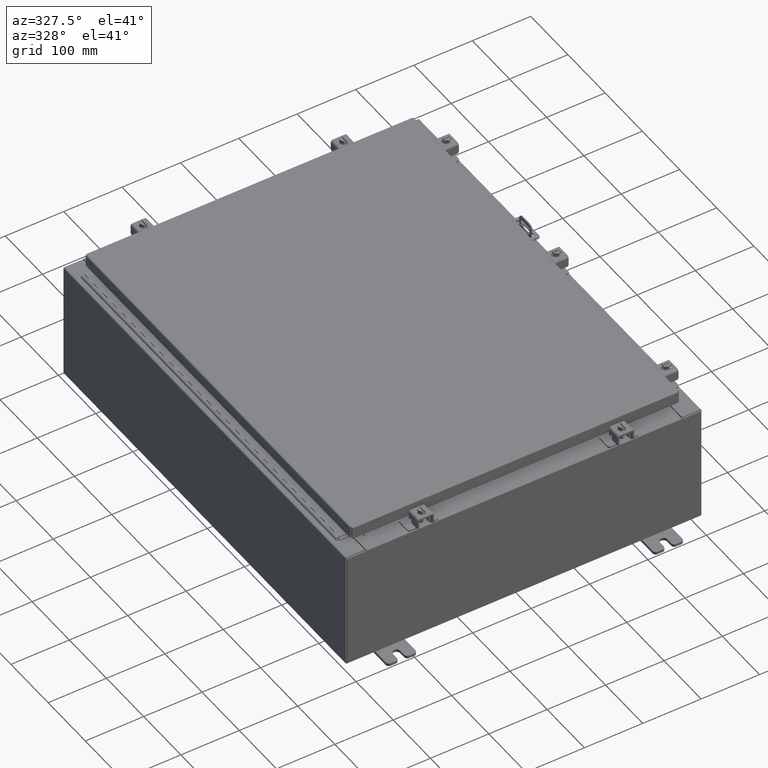
[diagram: clean part render]
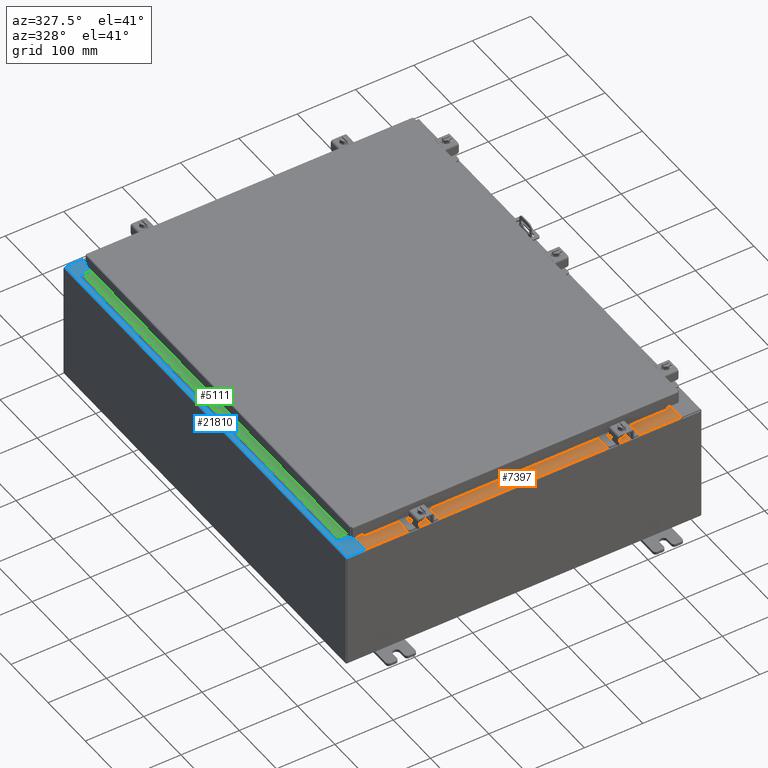
[diagram: same view with three faces highlighted in distinct colors, each labeled with its STEP entity id]
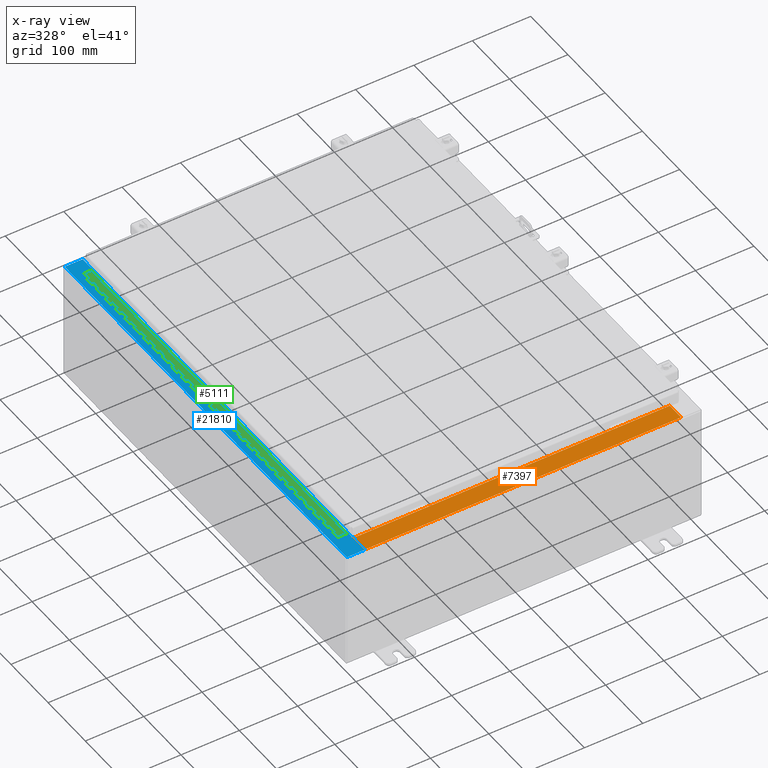
[diagram: x-ray of the same camera — body ghosted, the three highlighted faces saturated]
A machine part, auxiliary view with three faces highlighted in distinct colors.
The next image is the same camera in x-ray (body ghosted, the three faces saturated) — at least one of them is partly hidden behind the body in this view.
Their STEP definitions:

[orange] entity #7397 — the highlighted planar face has unit normal (-0, -0, 1).
#11 = CARTESIAN_POINT ( 'NONE',  ( -10.63720000000000200, -0.07469999999999973900, 4.000000000000000000 ) ) ;
#574 = CARTESIAN_POINT ( 'NONE',  ( 10.63720000000000400, -0.08769999999999965300, 4.000000000000000000 ) ) ;
#596 = LINE ( 'NONE', #34496, #22704 ) ;
#1364 = CARTESIAN_POINT ( 'NONE',  ( 0.0000000000000000000, 1.425992975200418500E-014, 4.000000000000000000 ) ) ;
#2251 = VECTOR ( 'NONE', #15188, 39.37007874015748100 ) ;
#2300 = VERTEX_POINT ( 'NONE', #574 ) ;
#2858 = CARTESIAN_POINT ( 'NONE',  ( 10.63720000000000200, -1.287299999999999900, 4.000000000000004400 ) ) ;
#3327 = EDGE_LOOP ( 'NONE', ( #36433, #17893, #9178, #7896 ) ) ;
#3975 = FACE_OUTER_BOUND ( 'NONE', #3327, .T. ) ;
#4523 = DIRECTION ( 'NONE',  ( 0.0000000000000000000, 3.566381192773190000E-015, 1.000000000000000000 ) ) ;
#4653 = EDGE_CURVE ( 'NONE', #2300, #34956, #596, .T. ) ;
#6651 = VECTOR ( 'NONE', #7825, 39.37007874015748100 ) ;
#7055 = EDGE_CURVE ( 'NONE', #32058, #34956, #21636, .T. ) ;
#7397 = ADVANCED_FACE ( 'NONE', ( #3975 ), #28844, .T. ) ;
#7825 = DIRECTION ( 'NONE',  ( -1.000000000000000000, 0.0000000000000000000, 0.0000000000000000000 ) ) ;
#7896 = ORIENTED_EDGE ( 'NONE', *, *, #4653, .T. ) ;
#9178 = ORIENTED_EDGE ( 'NONE', *, *, #33919, .F. ) ;
#9882 = LINE ( 'NONE', #18121, #2251 ) ;
#15174 = LINE ( 'NONE', #16341, #6651 ) ;
#15188 = DIRECTION ( 'NONE',  ( -0.0000000000000000000, -1.000000000000000000, 3.566381192773190000E-015 ) ) ;
#16341 = CARTESIAN_POINT ( 'NONE',  ( 10.63720000000000400, -1.287299999999999900, 4.000000000000003600 ) ) ;
#17689 = DIRECTION ( 'NONE',  ( 0.0000000000000000000, -1.000000000000000000, 3.566381192773190000E-015 ) ) ;
#17893 = ORIENTED_EDGE ( 'NONE', *, *, #35214, .F. ) ;
#18121 = CARTESIAN_POINT ( 'NONE',  ( 10.63720000000000200, -1.300299999999999800, 4.000000000000004400 ) ) ;
#18821 = DIRECTION ( 'NONE',  ( -1.000000000000000000, 2.568202152506545800E-017, -9.159187855938968600E-032 ) ) ;
#18934 = AXIS2_PLACEMENT_3D ( 'NONE', #1364, #4523, #17689 ) ;
#21636 = LINE ( 'NONE', #11, #36206 ) ;
#22704 = VECTOR ( 'NONE', #18821, 39.37007874015748100 ) ;
#26310 = VERTEX_POINT ( 'NONE', #2858 ) ;
#28461 = DIRECTION ( 'NONE',  ( -0.0000000000000000000, 1.000000000000000000, -3.566381192773190000E-015 ) ) ;
#28844 = PLANE ( 'NONE',  #18934 ) ;
#30292 = CARTESIAN_POINT ( 'NONE',  ( -10.63720000000000200, -0.08770000000000000000, 4.000000000000000000 ) ) ;
#31923 = CARTESIAN_POINT ( 'NONE',  ( -10.63720000000000200, -1.287299999999999200, 4.000000000000004400 ) ) ;
#32058 = VERTEX_POINT ( 'NONE', #31923 ) ;
#33919 = EDGE_CURVE ( 'NONE', #2300, #26310, #9882, .T. ) ;
#34496 = CARTESIAN_POINT ( 'NONE',  ( -2.252313287748606700E-018, -0.08770000000000000000, 4.000000000000000900 ) ) ;
#34956 = VERTEX_POINT ( 'NONE', #30292 ) ;
#35214 = EDGE_CURVE ( 'NONE', #26310, #32058, #15174, .T. ) ;
#36206 = VECTOR ( 'NONE', #28461, 39.37007874015748100 ) ;
#36433 = ORIENTED_EDGE ( 'NONE', *, *, #7055, .F. ) ;

[blue] entity #21810 — the highlighted planar face has unit normal (0, 0, -1).
#514 = CARTESIAN_POINT ( 'NONE',  ( -10.69970000000003400, 0.0000000000000000000, 7.925300000000008900 ) ) ;
#917 = VECTOR ( 'NONE', #4198, 39.37007874015748100 ) ;
#1333 = CARTESIAN_POINT ( 'NONE',  ( -10.75005000000003400, 13.59374999999999800, 7.925300000000010700 ) ) ;
#1671 = ORIENTED_EDGE ( 'NONE', *, *, #13260, .F. ) ;
#2026 = CARTESIAN_POINT ( 'NONE',  ( -10.75005000000003400, 13.63109999999999600, 7.925300000000008900 ) ) ;
#2275 = CARTESIAN_POINT ( 'NONE',  ( -10.69970000000003400, 14.92530000000000000, 7.925300000000008900 ) ) ;
#2514 = LINE ( 'NONE', #514, #16869 ) ;
#2702 = CARTESIAN_POINT ( 'NONE',  ( -11.91230000000003400, 14.92530000000000000, 7.925300000000000000 ) ) ;
#2774 = EDGE_CURVE ( 'NONE', #14167, #19565, #23014, .T. ) ;
#2849 = DIRECTION ( 'NONE',  ( 0.0000000000000000000, 1.000000000000000000, 0.0000000000000000000 ) ) ;
#2850 = CARTESIAN_POINT ( 'NONE',  ( -10.75005000000003400, -13.59375000000000000, 7.925300000000008900 ) ) ;
#3694 = VECTOR ( 'NONE', #37148, 39.37007874015748100 ) ;
#3722 = VERTEX_POINT ( 'NONE', #35201 ) ;
#4044 = FACE_OUTER_BOUND ( 'NONE', #5223, .T. ) ;
#4161 = DIRECTION ( 'NONE',  ( 1.000000000000000000, 0.0000000000000000000, 0.0000000000000000000 ) ) ;
#4198 = DIRECTION ( 'NONE',  ( -0.0000000000000000000, 1.000000000000000000, -0.0000000000000000000 ) ) ;
#5154 = ORIENTED_EDGE ( 'NONE', *, *, #15222, .T. ) ;
#5223 = EDGE_LOOP ( 'NONE', ( #14503, #12954, #37234, #18778, #20029, #5154, #27723, #23248, #27949, #17855, #1671, #26742 ) ) ;
#5362 = VERTEX_POINT ( 'NONE', #22288 ) ;
#5551 = VECTOR ( 'NONE', #29270, 39.37007874015748100 ) ;
#6323 = PLANE ( 'NONE',  #6960 ) ;
#6656 = CARTESIAN_POINT ( 'NONE',  ( -11.91230000000003400, -14.92530000000000000, 7.925300000000000000 ) ) ;
#6718 = DIRECTION ( 'NONE',  ( 1.000000000000000000, 0.0000000000000000000, 0.0000000000000000000 ) ) ;
#6960 = AXIS2_PLACEMENT_3D ( 'NONE', #11564, #15930, #11047 ) ;
#8313 = VERTEX_POINT ( 'NONE', #8395 ) ;
#8395 = CARTESIAN_POINT ( 'NONE',  ( -10.69970000000003400, -13.63110000000000200, 7.925300000000008900 ) ) ;
#9576 = CARTESIAN_POINT ( 'NONE',  ( -10.75005000000003400, -13.61242500000000000, 7.925300000000010700 ) ) ;
#9773 = EDGE_CURVE ( 'NONE', #18652, #19805, #30613, .T. ) ;
#9859 = DIRECTION ( 'NONE',  ( 1.000000000000000000, 0.0000000000000000000, 0.0000000000000000000 ) ) ;
#10265 = CARTESIAN_POINT ( 'NONE',  ( -10.71270000000003500, 13.59375000000000000, 7.925300000000010700 ) ) ;
#10984 = CARTESIAN_POINT ( 'NONE',  ( -10.71270000000003500, -13.59375000000000000, 7.925300000000010700 ) ) ;
#11047 = DIRECTION ( 'NONE',  ( -1.000000000000000000, 0.0000000000000000000, -7.132762385546384700E-015 ) ) ;
#11079 = CARTESIAN_POINT ( 'NONE',  ( -10.75005000000003400, 13.61242499999999600, 7.925300000000010700 ) ) ;
#11564 = CARTESIAN_POINT ( 'NONE',  ( -5.679009539018295300E-014, 0.0000000000000000000, 7.925300000000085300 ) ) ;
#12219 = LINE ( 'NONE', #10984, #3694 ) ;
#12313 = DIRECTION ( 'NONE',  ( -7.132762385546384700E-015, -0.0000000000000000000, 1.000000000000000000 ) ) ;
#12954 = ORIENTED_EDGE ( 'NONE', *, *, #27868, .T. ) ;
#13069 = CARTESIAN_POINT ( 'NONE',  ( -10.75005000000003400, -13.63109999999999800, 7.925300000000008900 ) ) ;
#13260 = EDGE_CURVE ( 'NONE', #19805, #3722, #22637, .T. ) ;
#13561 = CARTESIAN_POINT ( 'NONE',  ( -10.75005000000003400, 13.59374999999999800, 7.925300000000008900 ) ) ;
#13834 = LINE ( 'NONE', #18124, #36179 ) ;
#13963 = VECTOR ( 'NONE', #4161, 39.37007874015748100 ) ;
#14167 = VERTEX_POINT ( 'NONE', #6656 ) ;
#14460 = EDGE_CURVE ( 'NONE', #33531, #8313, #35797, .T. ) ;
#14503 = ORIENTED_EDGE ( 'NONE', *, *, #28995, .F. ) ;
#15181 = LINE ( 'NONE', #10265, #16994 ) ;
#15222 = EDGE_CURVE ( 'NONE', #25325, #8313, #13834, .T. ) ;
#15256 = EDGE_CURVE ( 'NONE', #14167, #25325, #20672, .T. ) ;
#15930 = DIRECTION ( 'NONE',  ( 7.132762385546384700E-015, 0.0000000000000000000, -1.000000000000000000 ) ) ;
#16325 = LINE ( 'NONE', #30967, #30964 ) ;
#16869 = VECTOR ( 'NONE', #35224, 39.37007874015748100 ) ;
#16994 = VECTOR ( 'NONE', #35837, 39.37007874015748100 ) ;
#17526 = DIRECTION ( 'NONE',  ( 1.000000000000000000, 0.0000000000000000000, -2.170286390200049500E-014 ) ) ;
#17636 = CARTESIAN_POINT ( 'NONE',  ( -11.91230000000003400, 14.92530000000000000, 7.925300000000000000 ) ) ;
#17855 = ORIENTED_EDGE ( 'NONE', *, *, #23171, .F. ) ;
#18124 = CARTESIAN_POINT ( 'NONE',  ( -10.69970000000003400, 0.0000000000000000000, 7.925300000000008900 ) ) ;
#18652 = VERTEX_POINT ( 'NONE', #2026 ) ;
#18778 = ORIENTED_EDGE ( 'NONE', *, *, #2774, .F. ) ;
#19133 = VERTEX_POINT ( 'NONE', #2850 ) ;
#19565 = VERTEX_POINT ( 'NONE', #2702 ) ;
#19620 = EDGE_CURVE ( 'NONE', #29485, #19565, #16325, .T. ) ;
#19760 = VECTOR ( 'NONE', #22902, 39.37007874015748100 ) ;
#19805 = VERTEX_POINT ( 'NONE', #13561 ) ;
#20028 = LINE ( 'NONE', #26326, #5551 ) ;
#20029 = ORIENTED_EDGE ( 'NONE', *, *, #15256, .T. ) ;
#20268 = VECTOR ( 'NONE', #17526, 39.37007874015748100 ) ;
#20672 = LINE ( 'NONE', #25787, #19760 ) ;
#21810 = ADVANCED_FACE ( 'NONE', ( #4044 ), #6323, .F. ) ;
#22288 = CARTESIAN_POINT ( 'NONE',  ( -10.69970000000003400, 13.63109999999999600, 7.925300000000008900 ) ) ;
#22637 = LINE ( 'NONE', #1333, #13963 ) ;
#22902 = DIRECTION ( 'NONE',  ( 1.000000000000000000, -0.0000000000000000000, 7.132762385546384700E-015 ) ) ;
#23014 = LINE ( 'NONE', #17636, #917 ) ;
#23171 = EDGE_CURVE ( 'NONE', #3722, #31350, #15181, .T. ) ;
#23248 = ORIENTED_EDGE ( 'NONE', *, *, #24917, .F. ) ;
#24871 = CIRCLE ( 'NONE', #34128, 0.01867499999999949400 ) ;
#24917 = EDGE_CURVE ( 'NONE', #19133, #33531, #24871, .T. ) ;
#25291 = DIRECTION ( 'NONE',  ( -1.000000000000000000, 0.0000000000000000000, -7.132762385546384700E-015 ) ) ;
#25325 = VERTEX_POINT ( 'NONE', #35946 ) ;
#25787 = CARTESIAN_POINT ( 'NONE',  ( -5.679009539018295300E-014, -14.92530000000000000, 7.925300000000085300 ) ) ;
#26252 = AXIS2_PLACEMENT_3D ( 'NONE', #11079, #12313, #9859 ) ;
#26326 = CARTESIAN_POINT ( 'NONE',  ( -10.69970000000003400, 13.63109999999999600, 7.925300000000009800 ) ) ;
#26742 = ORIENTED_EDGE ( 'NONE', *, *, #9773, .F. ) ;
#26985 = DIRECTION ( 'NONE',  ( -7.132762385546384700E-015, -0.0000000000000000000, 1.000000000000000000 ) ) ;
#26994 = CARTESIAN_POINT ( 'NONE',  ( -10.71270000000003500, -13.59375000000000000, 7.925300000000010700 ) ) ;
#27723 = ORIENTED_EDGE ( 'NONE', *, *, #14460, .F. ) ;
#27868 = EDGE_CURVE ( 'NONE', #5362, #29485, #2514, .T. ) ;
#27949 = ORIENTED_EDGE ( 'NONE', *, *, #30703, .F. ) ;
#28995 = EDGE_CURVE ( 'NONE', #5362, #18652, #20028, .T. ) ;
#29270 = DIRECTION ( 'NONE',  ( -1.000000000000000000, 0.0000000000000000000, 2.170286390200049500E-014 ) ) ;
#29485 = VERTEX_POINT ( 'NONE', #2275 ) ;
#30613 = CIRCLE ( 'NONE', #26252, 0.01867499999999949400 ) ;
#30703 = EDGE_CURVE ( 'NONE', #31350, #19133, #12219, .T. ) ;
#30964 = VECTOR ( 'NONE', #25291, 39.37007874015748100 ) ;
#30967 = CARTESIAN_POINT ( 'NONE',  ( -5.679009539018295300E-014, 14.92530000000000000, 7.925300000000085300 ) ) ;
#31350 = VERTEX_POINT ( 'NONE', #26994 ) ;
#33531 = VERTEX_POINT ( 'NONE', #13069 ) ;
#34128 = AXIS2_PLACEMENT_3D ( 'NONE', #9576, #26985, #6718 ) ;
#35011 = CARTESIAN_POINT ( 'NONE',  ( -10.75005000000003400, -13.63109999999999800, 7.925300000000010700 ) ) ;
#35201 = CARTESIAN_POINT ( 'NONE',  ( -10.71270000000003500, 13.59374999999999800, 7.925300000000010700 ) ) ;
#35224 = DIRECTION ( 'NONE',  ( 0.0000000000000000000, 1.000000000000000000, 0.0000000000000000000 ) ) ;
#35797 = LINE ( 'NONE', #35011, #20268 ) ;
#35837 = DIRECTION ( 'NONE',  ( -0.0000000000000000000, -1.000000000000000000, -0.0000000000000000000 ) ) ;
#35946 = CARTESIAN_POINT ( 'NONE',  ( -10.69970000000003400, -14.92530000000000000, 7.925300000000008900 ) ) ;
#36179 = VECTOR ( 'NONE', #2849, 39.37007874015748100 ) ;
#37148 = DIRECTION ( 'NONE',  ( -1.000000000000000000, 0.0000000000000000000, 0.0000000000000000000 ) ) ;
#37234 = ORIENTED_EDGE ( 'NONE', *, *, #19620, .T. ) ;

[green] entity #5111 — the highlighted planar face has unit normal (-0, -0, 1).
#8 = VERTEX_POINT ( 'NONE', #16643 ) ;
#23 = CARTESIAN_POINT ( 'NONE',  ( -0.6869999999999982800, 0.5504999999999997700, -10.50000000000000000 ) ) ;
#132 = LINE ( 'NONE', #29634, #14468 ) ;
#204 = EDGE_CURVE ( 'NONE', #7099, #6500, #7386, .T. ) ;
#211 = VECTOR ( 'NONE', #25343, 39.37007874015748100 ) ;
#215 = EDGE_CURVE ( 'NONE', #17529, #17952, #24606, .T. ) ;
#249 = VERTEX_POINT ( 'NONE', #18486 ) ;
#262 = VERTEX_POINT ( 'NONE', #9765 ) ;
#277 = VECTOR ( 'NONE', #27910, 39.37007874015748100 ) ;
#296 = ORIENTED_EDGE ( 'NONE', *, *, #204, .F. ) ;
#387 = LINE ( 'NONE', #23678, #14735 ) ;
#409 = EDGE_CURVE ( 'NONE', #16633, #27017, #23200, .T. ) ;
#414 = VERTEX_POINT ( 'NONE', #24173 ) ;
#448 = CARTESIAN_POINT ( 'NONE',  ( -0.6869999999999978300, 0.6754999999999996600, -11.00000000000000000 ) ) ;
#473 = DIRECTION ( 'NONE',  ( 0.0000000000000000000, -0.0000000000000000000, -1.000000000000000000 ) ) ;
#496 = CARTESIAN_POINT ( 'NONE',  ( -0.6869999999999982800, 0.5504999999999997700, -14.49999999999999800 ) ) ;
#659 = VERTEX_POINT ( 'NONE', #448 ) ;
#728 = VECTOR ( 'NONE', #17107, 39.37007874015748100 ) ;
#739 = DIRECTION ( 'NONE',  ( 0.0000000000000000000, -0.0000000000000000000, -1.000000000000000000 ) ) ;
#753 = VECTOR ( 'NONE', #36093, 39.37007874015748100 ) ;
#762 = AXIS2_PLACEMENT_3D ( 'NONE', #13167, #4556, #11371 ) ;
#764 = EDGE_CURVE ( 'NONE', #25960, #32349, #26854, .T. ) ;
#849 = CARTESIAN_POINT ( 'NONE',  ( -0.6869999999999978300, 0.6754999999999996600, -8.000000000000000000 ) ) ;
#850 = ORIENTED_EDGE ( 'NONE', *, *, #29596, .F. ) ;
#891 = VERTEX_POINT ( 'NONE', #1780 ) ;
#896 = LINE ( 'NONE', #16443, #22987 ) ;
#904 = ORIENTED_EDGE ( 'NONE', *, *, #7158, .F. ) ;
#942 = DIRECTION ( 'NONE',  ( 3.389037039080723100E-015, 1.000000000000000000, -0.0000000000000000000 ) ) ;
#954 = LINE ( 'NONE', #14232, #9470 ) ;
#983 = VECTOR ( 'NONE', #29928, 39.37007874015748100 ) ;
#999 = ORIENTED_EDGE ( 'NONE', *, *, #8545, .F. ) ;
#1003 = VECTOR ( 'NONE', #23556, 39.37007874015748100 ) ;
#1006 = VECTOR ( 'NONE', #7498, 39.37007874015748100 ) ;
#1078 = VERTEX_POINT ( 'NONE', #23965 ) ;
#1088 = LINE ( 'NONE', #1938, #14514 ) ;
#1118 = DIRECTION ( 'NONE',  ( 0.0000000000000000000, -0.0000000000000000000, -1.000000000000000000 ) ) ;
#1129 = ORIENTED_EDGE ( 'NONE', *, *, #33064, .F. ) ;
#1215 = LINE ( 'NONE', #1889, #15534 ) ;
#1227 = LINE ( 'NONE', #34429, #15545 ) ;
#1235 = CARTESIAN_POINT ( 'NONE',  ( -0.6869999999999978300, 0.6754999999999996600, -23.50000000000000000 ) ) ;
#1286 = EDGE_CURVE ( 'NONE', #12042, #24651, #19040, .T. ) ;
#1342 = EDGE_CURVE ( 'NONE', #31752, #34221, #10441, .T. ) ;
#1347 = DIRECTION ( 'NONE',  ( 0.0000000000000000000, 0.0000000000000000000, 1.000000000000000000 ) ) ;
#1351 = CARTESIAN_POINT ( 'NONE',  ( -0.6869999999999973900, 0.8004999999999995500, -5.000000000000000000 ) ) ;
#1457 = VECTOR ( 'NONE', #33475, 39.37007874015748100 ) ;
#1498 = EDGE_CURVE ( 'NONE', #35407, #8199, #27242, .T. ) ;
#1530 = CARTESIAN_POINT ( 'NONE',  ( -0.6869999999999978300, 0.6754999999999996600, -20.50000000000000400 ) ) ;
#1553 = VECTOR ( 'NONE', #16349, 39.37007874015748100 ) ;
#1583 = VECTOR ( 'NONE', #9348, 39.37007874015748100 ) ;
#1756 = EDGE_CURVE ( 'NONE', #28181, #30939, #20818, .T. ) ;
#1780 = CARTESIAN_POINT ( 'NONE',  ( -0.6869999999999982800, 0.5504999999999997700, -24.50000000000000000 ) ) ;
#1830 = ORIENTED_EDGE ( 'NONE', *, *, #13577, .F. ) ;
#1864 = VECTOR ( 'NONE', #25588, 39.37007874015748100 ) ;
#1889 = CARTESIAN_POINT ( 'NONE',  ( -0.6869999999999973900, 0.8004999999999995500, -2.000000000000000000 ) ) ;
#1912 = EDGE_CURVE ( 'NONE', #5379, #30939, #14423, .T. ) ;
#1924 = EDGE_CURVE ( 'NONE', #3435, #3567, #21282, .T. ) ;
#1938 = CARTESIAN_POINT ( 'NONE',  ( -0.6869999999999978300, 0.6754999999999996600, -27.00000000000000000 ) ) ;
#1946 = LINE ( 'NONE', #18193, #8675 ) ;
#1958 = DIRECTION ( 'NONE',  ( 0.0000000000000000000, 0.0000000000000000000, 1.000000000000000000 ) ) ;
#1975 = VERTEX_POINT ( 'NONE', #15415 ) ;
#2072 = EDGE_CURVE ( 'NONE', #17264, #7540, #17609, .T. ) ;
#2135 = EDGE_CURVE ( 'NONE', #33676, #27907, #37171, .T. ) ;
#2204 = CARTESIAN_POINT ( 'NONE',  ( -0.6869999999999982800, 0.5504999999999997700, -17.00000000000000000 ) ) ;
#2241 = EDGE_CURVE ( 'NONE', #8331, #36223, #4522, .T. ) ;
#2407 = VERTEX_POINT ( 'NONE', #12341 ) ;
#2410 = EDGE_CURVE ( 'NONE', #32220, #3567, #20317, .T. ) ;
#2575 = LINE ( 'NONE', #4472, #9306 ) ;
#2594 = DIRECTION ( 'NONE',  ( 0.0000000000000000000, 0.0000000000000000000, 1.000000000000000000 ) ) ;
#2632 = CARTESIAN_POINT ( 'NONE',  ( -0.6869999999999982800, 0.5504999999999997700, -16.50000000000000000 ) ) ;
#2650 = VECTOR ( 'NONE', #19680, 39.37007874015748100 ) ;
#2671 = DIRECTION ( 'NONE',  ( 0.0000000000000000000, -0.0000000000000000000, -1.000000000000000000 ) ) ;
#2705 = VERTEX_POINT ( 'NONE', #32746 ) ;
#2843 = VECTOR ( 'NONE', #10701, 39.37007874015748100 ) ;
#2953 = VECTOR ( 'NONE', #21377, 39.37007874015748100 ) ;
#3030 = VERTEX_POINT ( 'NONE', #28670 ) ;
#3198 = LINE ( 'NONE', #9742, #10794 ) ;
#3376 = LINE ( 'NONE', #37378, #26456 ) ;
#3435 = VERTEX_POINT ( 'NONE', #31432 ) ;
#3523 = ORIENTED_EDGE ( 'NONE', *, *, #16315, .T. ) ;
#3552 = LINE ( 'NONE', #33516, #2650 ) ;
#3567 = VERTEX_POINT ( 'NONE', #849 ) ;
#3599 = EDGE_CURVE ( 'NONE', #3030, #30393, #17947, .T. ) ;
#3600 = CARTESIAN_POINT ( 'NONE',  ( -0.6869999999999973900, 0.8004999999999995500, -0.5000000000000000000 ) ) ;
#3657 = EDGE_CURVE ( 'NONE', #29319, #9085, #23885, .T. ) ;
#3660 = CARTESIAN_POINT ( 'NONE',  ( -0.6869999999999978300, 0.6754999999999996600, -21.50000000000000400 ) ) ;
#3696 = CARTESIAN_POINT ( 'NONE',  ( -0.6869999999999973900, 0.8004999999999995500, -11.50000000000000000 ) ) ;
#3812 = VERTEX_POINT ( 'NONE', #9360 ) ;
#3821 = CARTESIAN_POINT ( 'NONE',  ( -0.6869999999999978300, 0.6754999999999996600, -1.499999999999999800 ) ) ;
#3847 = CARTESIAN_POINT ( 'NONE',  ( -0.6869999999999973900, 0.8004999999999995500, -24.50000000000000000 ) ) ;
#3883 = ORIENTED_EDGE ( 'NONE', *, *, #26601, .F. ) ;
#3894 = CARTESIAN_POINT ( 'NONE',  ( -0.6869999999999982800, 0.5504999999999997700, -17.50000000000000000 ) ) ;
#3904 = CARTESIAN_POINT ( 'NONE',  ( -0.6869999999999973900, 0.8004999999999995500, -9.500000000000000000 ) ) ;
#3909 = VECTOR ( 'NONE', #33680, 39.37007874015748100 ) ;
#3950 = CARTESIAN_POINT ( 'NONE',  ( -0.6869999999999973900, 0.8004999999999995500, -11.00000000000000000 ) ) ;
#4011 = CARTESIAN_POINT ( 'NONE',  ( -0.6869999999999982800, 0.5504999999999997700, -3.500000000000000000 ) ) ;
#4213 = ORIENTED_EDGE ( 'NONE', *, *, #10092, .F. ) ;
#4248 = DIRECTION ( 'NONE',  ( 3.389037039080723100E-015, 1.000000000000000000, -0.0000000000000000000 ) ) ;
#4266 = DIRECTION ( 'NONE',  ( 0.0000000000000000000, 0.0000000000000000000, 1.000000000000000000 ) ) ;
#4342 = DIRECTION ( 'NONE',  ( 0.0000000000000000000, 0.0000000000000000000, 1.000000000000000000 ) ) ;
#4350 = VERTEX_POINT ( 'NONE', #34170 ) ;
#4385 = ORIENTED_EDGE ( 'NONE', *, *, #35445, .F. ) ;
#4424 = CARTESIAN_POINT ( 'NONE',  ( -0.6869999999999982800, 0.5504999999999997700, -24.99999999999999600 ) ) ;
#4444 = LINE ( 'NONE', #18769, #17965 ) ;
#4451 = LINE ( 'NONE', #19430, #18879 ) ;
#4472 = CARTESIAN_POINT ( 'NONE',  ( -0.6869999999999978300, 0.6754999999999996600, -27.00000000000000000 ) ) ;
#4507 = VECTOR ( 'NONE', #28474, 39.37007874015748100 ) ;
#4522 = LINE ( 'NONE', #10375, #10368 ) ;
#4556 = DIRECTION ( 'NONE',  ( 1.000000000000000000, -3.369016658928398200E-015, 0.0000000000000000000 ) ) ;
#4560 = DIRECTION ( 'NONE',  ( -3.389037039080723100E-015, -1.000000000000000000, 0.0000000000000000000 ) ) ;
#4611 = LINE ( 'NONE', #31817, #27713 ) ;
#4662 = VECTOR ( 'NONE', #32341, 39.37007874015748100 ) ;
#4672 = CARTESIAN_POINT ( 'NONE',  ( -0.6869999999999982800, 0.5504999999999997700, -0.5000000000000000000 ) ) ;
#4806 = LINE ( 'NONE', #33512, #3909 ) ;
#4820 = CARTESIAN_POINT ( 'NONE',  ( -0.6869999999999982800, 0.5504999999999997700, -2.000000000000000000 ) ) ;
#4964 = ORIENTED_EDGE ( 'NONE', *, *, #1924, .F. ) ;
#4981 = CARTESIAN_POINT ( 'NONE',  ( -0.6869999999999978300, 0.6754999999999996600, -27.00000000000000000 ) ) ;
#4988 = ORIENTED_EDGE ( 'NONE', *, *, #20780, .F. ) ;
#4991 = CARTESIAN_POINT ( 'NONE',  ( -0.6869999999999973900, 0.8004999999999995500, -23.00000000000000000 ) ) ;
#5028 = CARTESIAN_POINT ( 'NONE',  ( -0.6869999999999973900, 0.8004999999999995500, -7.499999999999999100 ) ) ;
#5111 = ADVANCED_FACE ( 'NONE', ( #25418 ), #12142, .T. ) ;
#5171 = VERTEX_POINT ( 'NONE', #25844 ) ;
#5237 = CARTESIAN_POINT ( 'NONE',  ( -0.6869999999999973900, 0.8004999999999995500, -14.99999999999999800 ) ) ;
#5238 = LINE ( 'NONE', #3600, #35210 ) ;
#5267 = VECTOR ( 'NONE', #8573, 39.37007874015748100 ) ;
#5284 = ORIENTED_EDGE ( 'NONE', *, *, #23919, .F. ) ;
#5290 = VERTEX_POINT ( 'NONE', #22544 ) ;
#5338 = DIRECTION ( 'NONE',  ( 0.0000000000000000000, 0.0000000000000000000, 1.000000000000000000 ) ) ;
#5351 = EDGE_CURVE ( 'NONE', #6171, #10602, #9509, .T. ) ;
#5379 = VERTEX_POINT ( 'NONE', #22340 ) ;
#5449 = EDGE_CURVE ( 'NONE', #6195, #13743, #27223, .T. ) ;
#5746 = ORIENTED_EDGE ( 'NONE', *, *, #26266, .F. ) ;
#5857 = ORIENTED_EDGE ( 'NONE', *, *, #27433, .T. ) ;
#5954 = VECTOR ( 'NONE', #36712, 39.37007874015748100 ) ;
#6028 = VERTEX_POINT ( 'NONE', #34908 ) ;
#6097 = LINE ( 'NONE', #11986, #20550 ) ;
#6159 = CARTESIAN_POINT ( 'NONE',  ( -0.6869999999999978300, 0.6754999999999996600, -20.00000000000000000 ) ) ;
#6170 = VECTOR ( 'NONE', #4266, 39.37007874015748100 ) ;
#6171 = VERTEX_POINT ( 'NONE', #3821 ) ;
#6195 = VERTEX_POINT ( 'NONE', #1235 ) ;
#6218 = DIRECTION ( 'NONE',  ( 0.0000000000000000000, 0.0000000000000000000, 1.000000000000000000 ) ) ;
#6219 = ORIENTED_EDGE ( 'NONE', *, *, #34415, .F. ) ;
#6243 = EDGE_CURVE ( 'NONE', #20862, #12042, #17102, .T. ) ;
#6363 = DIRECTION ( 'NONE',  ( -3.389037039080723100E-015, -1.000000000000000000, 0.0000000000000000000 ) ) ;
#6389 = EDGE_CURVE ( 'NONE', #31908, #26291, #33109, .T. ) ;
#6480 = VERTEX_POINT ( 'NONE', #27275 ) ;
#6500 = VERTEX_POINT ( 'NONE', #16816 ) ;
#6529 = CARTESIAN_POINT ( 'NONE',  ( -0.6869999999999973900, 0.8004999999999995500, -19.50000000000000000 ) ) ;
#6559 = ORIENTED_EDGE ( 'NONE', *, *, #22837, .F. ) ;
#6570 = CARTESIAN_POINT ( 'NONE',  ( -0.6869999999999978300, 0.6754999999999996600, -17.99999999999999600 ) ) ;
#6596 = ORIENTED_EDGE ( 'NONE', *, *, #5449, .T. ) ;
#6601 = VERTEX_POINT ( 'NONE', #32049 ) ;
#6639 = EDGE_CURVE ( 'NONE', #27766, #659, #25751, .T. ) ;
#6652 = CARTESIAN_POINT ( 'NONE',  ( -0.6869999999999982800, 0.5504999999999997700, -22.50000000000000000 ) ) ;
#6842 = CARTESIAN_POINT ( 'NONE',  ( -0.6869999999999978300, 0.6754999999999996600, -12.49999999999999800 ) ) ;
#6861 = CARTESIAN_POINT ( 'NONE',  ( -0.6869999999999973900, 0.8004999999999995500, -10.00000000000000000 ) ) ;
#6917 = CARTESIAN_POINT ( 'NONE',  ( -0.6869999999999982800, 0.5504999999999997700, -22.00000000000000000 ) ) ;
#6919 = DIRECTION ( 'NONE',  ( 0.0000000000000000000, -0.0000000000000000000, -1.000000000000000000 ) ) ;
#6998 = LINE ( 'NONE', #16975, #19621 ) ;
#7096 = LINE ( 'NONE', #5237, #21556 ) ;
#7099 = VERTEX_POINT ( 'NONE', #32841 ) ;
#7158 = EDGE_CURVE ( 'NONE', #8, #23911, #4444, .T. ) ;
#7213 = CARTESIAN_POINT ( 'NONE',  ( -0.6869999999999978300, 0.6754999999999996600, -27.00000000000000000 ) ) ;
#7309 = DIRECTION ( 'NONE',  ( 0.0000000000000000000, 0.0000000000000000000, 1.000000000000000000 ) ) ;
#7373 = ORIENTED_EDGE ( 'NONE', *, *, #28601, .F. ) ;
#7386 = LINE ( 'NONE', #24936, #37315 ) ;
#7389 = EDGE_LOOP ( 'NONE', ( #6219, #18820, #1129, #6559, #18036, #37062, #7373, #35547, #27185, #34971, #999, #35597, #5857, #31665, #23121, #9715, #6596, #31992, #9649, #21022, #35240, #27335, #22432, #850, #17789, #25430, #10549, #12514, #16557, #17359, #8673, #5284, #17749, #24108, #5746, #296, #32301, #18315, #32801, #32623, #9713, #29686, #28336, #18836, #27289, #20401, #25453, #15311, #15840, #4385, #19299, #35573, #24018, #25060, #1830, #12135, #34232, #31815, #18232, #29030, #33116, #21308, #14643, #16596, #32792, #19373, #30697, #4988, #36826, #23410, #28524, #3883, #8497, #35165, #31784, #22745, #17357, #4964, #20449, #36310, #12698, #37502, #4213, #27624, #27611, #25620, #36068, #22246, #19274, #37361, #27039, #11220, #3523, #904, #12129, #18673, #23050, #35968, #11773, #15888, #27798, #11814, #24640, #35559, #15768, #16099, #26758, #11297, #13562, #15374 ) ) ;
#7483 = LINE ( 'NONE', #34641, #28809 ) ;
#7498 = DIRECTION ( 'NONE',  ( -3.389037039080723100E-015, -1.000000000000000000, 0.0000000000000000000 ) ) ;
#7540 = VERTEX_POINT ( 'NONE', #25530 ) ;
#7546 = LINE ( 'NONE', #13559, #29795 ) ;
#7663 = CARTESIAN_POINT ( 'NONE',  ( -0.6869999999999982800, 0.5504999999999997700, -20.50000000000000400 ) ) ;
#7686 = CARTESIAN_POINT ( 'NONE',  ( -0.6869999999999978300, 0.6754999999999996600, -16.00000000000000000 ) ) ;
#7765 = LINE ( 'NONE', #15073, #30006 ) ;
#7811 = CARTESIAN_POINT ( 'NONE',  ( -0.6869999999999982800, 0.5504999999999997700, -19.50000000000000000 ) ) ;
#7827 = VECTOR ( 'NONE', #27846, 39.37007874015748100 ) ;
#7926 = VECTOR ( 'NONE', #12948, 39.37007874015748100 ) ;
#7980 = DIRECTION ( 'NONE',  ( 0.0000000000000000000, -0.0000000000000000000, -1.000000000000000000 ) ) ;
#7992 = VECTOR ( 'NONE', #21841, 39.37007874015748100 ) ;
#7999 = CARTESIAN_POINT ( 'NONE',  ( -0.6869999999999973900, 0.8004999999999995500, -8.500000000000000000 ) ) ;
#8008 = EDGE_CURVE ( 'NONE', #11765, #27017, #13794, .T. ) ;
#8049 = LINE ( 'NONE', #24334, #14774 ) ;
#8072 = EDGE_CURVE ( 'NONE', #249, #34221, #32498, .T. ) ;
#8080 = LINE ( 'NONE', #4011, #30345 ) ;
#8094 = CARTESIAN_POINT ( 'NONE',  ( -0.6869999999999978300, 0.6754999999999996600, -2.999999999999999600 ) ) ;
#8100 = EDGE_CURVE ( 'NONE', #8331, #5171, #2575, .T. ) ;
#8129 = CARTESIAN_POINT ( 'NONE',  ( -0.6869999999999982800, 0.5504999999999997700, -23.50000000000000000 ) ) ;
#8199 = VERTEX_POINT ( 'NONE', #11369 ) ;
#8237 = DIRECTION ( 'NONE',  ( -3.389037039080723100E-015, -1.000000000000000000, 0.0000000000000000000 ) ) ;
#8273 = CARTESIAN_POINT ( 'NONE',  ( -0.6869999999999982800, 0.5504999999999997700, -24.50000000000000000 ) ) ;
#8314 = VERTEX_POINT ( 'NONE', #7663 ) ;
#8331 = VERTEX_POINT ( 'NONE', #16766 ) ;
#8340 = LINE ( 'NONE', #33927, #728 ) ;
#8354 = CARTESIAN_POINT ( 'NONE',  ( -0.6869999999999982800, 0.5504999999999997700, -12.99999999999999800 ) ) ;
#8366 = LINE ( 'NONE', #27414, #753 ) ;
#8374 = LINE ( 'NONE', #22294, #23784 ) ;
#8451 = DIRECTION ( 'NONE',  ( 3.389037039080723100E-015, 1.000000000000000000, -0.0000000000000000000 ) ) ;
#8455 = CARTESIAN_POINT ( 'NONE',  ( -0.6869999999999978300, 0.6754999999999996600, -14.99999999999999800 ) ) ;
#8497 = ORIENTED_EDGE ( 'NONE', *, *, #3599, .T. ) ;
#8545 = EDGE_CURVE ( 'NONE', #891, #28181, #9779, .T. ) ;
#8573 = DIRECTION ( 'NONE',  ( -3.389037039080723100E-015, -1.000000000000000000, 0.0000000000000000000 ) ) ;
#8609 = EDGE_CURVE ( 'NONE', #20188, #4350, #22467, .T. ) ;
#8625 = LINE ( 'NONE', #35975, #1003 ) ;
#8629 = VECTOR ( 'NONE', #34002, 39.37007874015748100 ) ;
#8673 = ORIENTED_EDGE ( 'NONE', *, *, #24329, .F. ) ;
#8675 = VECTOR ( 'NONE', #26883, 39.37007874015748100 ) ;
#8784 = VECTOR ( 'NONE', #20238, 39.37007874015748100 ) ;
#8948 = DIRECTION ( 'NONE',  ( -3.389037039080723100E-015, -1.000000000000000000, 0.0000000000000000000 ) ) ;
#8995 = EDGE_CURVE ( 'NONE', #23240, #13767, #20162, .T. ) ;
#9002 = DIRECTION ( 'NONE',  ( -3.389037039080723100E-015, -1.000000000000000000, 0.0000000000000000000 ) ) ;
#9085 = VERTEX_POINT ( 'NONE', #35823 ) ;
#9170 = CARTESIAN_POINT ( 'NONE',  ( -0.6869999999999982800, 0.5504999999999997700, -16.00000000000000000 ) ) ;
#9172 = EDGE_CURVE ( 'NONE', #12659, #27797, #5238, .T. ) ;
#9299 = DIRECTION ( 'NONE',  ( 3.389037039080723100E-015, 1.000000000000000000, -0.0000000000000000000 ) ) ;
#9306 = VECTOR ( 'NONE', #36938, 39.37007874015748100 ) ;
#9348 = DIRECTION ( 'NONE',  ( -3.389037039080723100E-015, -1.000000000000000000, 0.0000000000000000000 ) ) ;
#9360 = CARTESIAN_POINT ( 'NONE',  ( -0.6869999999999982800, 0.5504999999999997700, -6.000000000000000900 ) ) ;
#9370 = EDGE_CURVE ( 'NONE', #6171, #2407, #7483, .T. ) ;
#9449 = CARTESIAN_POINT ( 'NONE',  ( -0.6869999999999973900, 0.8004999999999995500, -10.50000000000000000 ) ) ;
#9470 = VECTOR ( 'NONE', #34642, 39.37007874015748100 ) ;
#9472 = DIRECTION ( 'NONE',  ( -3.389037039080723100E-015, -1.000000000000000000, 0.0000000000000000000 ) ) ;
#9509 = LINE ( 'NONE', #36426, #1006 ) ;
#9531 = CARTESIAN_POINT ( 'NONE',  ( -0.6869999999999978300, 0.6754999999999996600, -27.00000000000000000 ) ) ;
#9586 = CARTESIAN_POINT ( 'NONE',  ( -0.6869999999999973900, 0.8004999999999995500, -5.500000000000000000 ) ) ;
#9649 = ORIENTED_EDGE ( 'NONE', *, *, #8995, .F. ) ;
#9713 = ORIENTED_EDGE ( 'NONE', *, *, #764, .T. ) ;
#9715 = ORIENTED_EDGE ( 'NONE', *, *, #30841, .F. ) ;
#9726 = CARTESIAN_POINT ( 'NONE',  ( -0.6869999999999982800, 0.5504999999999997700, -9.500000000000000000 ) ) ;
#9742 = CARTESIAN_POINT ( 'NONE',  ( -0.6869999999999982800, 0.5504999999999997700, -13.50000000000000000 ) ) ;
#9762 = EDGE_CURVE ( 'NONE', #8314, #249, #8340, .T. ) ;
#9765 = CARTESIAN_POINT ( 'NONE',  ( -0.6869999999999982800, 0.5504999999999997700, -26.50000000000000400 ) ) ;
#9769 = CARTESIAN_POINT ( 'NONE',  ( -0.6869999999999982800, 0.5504999999999997700, -17.50000000000000000 ) ) ;
#9779 = LINE ( 'NONE', #8273, #26135 ) ;
#9869 = DIRECTION ( 'NONE',  ( 0.0000000000000000000, 0.0000000000000000000, 1.000000000000000000 ) ) ;
#9886 = VECTOR ( 'NONE', #30534, 39.37007874015748100 ) ;
#10037 = CARTESIAN_POINT ( 'NONE',  ( -0.6869999999999982800, 0.5504999999999997700, -1.000000000000000000 ) ) ;
#10092 = EDGE_CURVE ( 'NONE', #36223, #6028, #6998, .T. ) ;
#10094 = VERTEX_POINT ( 'NONE', #35060 ) ;
#10368 = VECTOR ( 'NONE', #17727, 39.37007874015748100 ) ;
#10375 = CARTESIAN_POINT ( 'NONE',  ( -0.6869999999999973900, 0.8004999999999995500, -6.499999999999999100 ) ) ;
#10441 = LINE ( 'NONE', #26110, #24975 ) ;
#10457 = LINE ( 'NONE', #5028, #2843 ) ;
#10549 = ORIENTED_EDGE ( 'NONE', *, *, #9762, .F. ) ;
#10564 = LINE ( 'NONE', #18306, #25116 ) ;
#10602 = VERTEX_POINT ( 'NONE', #26210 ) ;
#10656 = LINE ( 'NONE', #4981, #25221 ) ;
#10695 = LINE ( 'NONE', #32366, #26169 ) ;
#10701 = DIRECTION ( 'NONE',  ( -3.389037039080723100E-015, -1.000000000000000000, 0.0000000000000000000 ) ) ;
#10721 = EDGE_CURVE ( 'NONE', #16227, #29559, #20931, .T. ) ;
#10749 = CARTESIAN_POINT ( 'NONE',  ( -0.6869999999999982800, 0.5504999999999997700, -13.50000000000000000 ) ) ;
#10794 = VECTOR ( 'NONE', #21279, 39.37007874015748100 ) ;
#10864 = VECTOR ( 'NONE', #35118, 39.37007874015748100 ) ;
#10908 = DIRECTION ( 'NONE',  ( 0.0000000000000000000, 0.0000000000000000000, 1.000000000000000000 ) ) ;
#10939 = EDGE_CURVE ( 'NONE', #15488, #13924, #18247, .T. ) ;
#10957 = EDGE_CURVE ( 'NONE', #13840, #14317, #26005, .T. ) ;
#11081 = CARTESIAN_POINT ( 'NONE',  ( -0.6869999999999982800, 0.5504999999999997700, -21.50000000000000400 ) ) ;
#11156 = DIRECTION ( 'NONE',  ( 0.0000000000000000000, -0.0000000000000000000, -1.000000000000000000 ) ) ;
#11220 = ORIENTED_EDGE ( 'NONE', *, *, #36409, .F. ) ;
#11254 = CARTESIAN_POINT ( 'NONE',  ( -0.6869999999999973900, 0.8004999999999995500, -1.000000000000000000 ) ) ;
#11293 = CARTESIAN_POINT ( 'NONE',  ( -0.6869999999999978300, 0.6754999999999996600, -22.00000000000000000 ) ) ;
#11297 = ORIENTED_EDGE ( 'NONE', *, *, #9172, .F. ) ;
#11301 = VECTOR ( 'NONE', #18446, 39.37007874015748100 ) ;
#11369 = CARTESIAN_POINT ( 'NONE',  ( -0.6869999999999978300, 0.6754999999999996600, -12.99999999999999800 ) ) ;
#11371 = DIRECTION ( 'NONE',  ( 3.369016658928398200E-015, 1.000000000000000000, 0.0000000000000000000 ) ) ;
#11376 = VERTEX_POINT ( 'NONE', #8094 ) ;
#11377 = VECTOR ( 'NONE', #23929, 39.37007874015748100 ) ;
#11579 = VECTOR ( 'NONE', #27163, 39.37007874015748100 ) ;
#11615 = VECTOR ( 'NONE', #28987, 39.37007874015748100 ) ;
#11622 = CARTESIAN_POINT ( 'NONE',  ( -0.6869999999999982800, 0.5504999999999997700, -5.000000000000000000 ) ) ;
#11625 = EDGE_CURVE ( 'NONE', #30650, #28086, #22315, .T. ) ;
#11675 = LINE ( 'NONE', #4672, #18475 ) ;
#11681 = VECTOR ( 'NONE', #31115, 39.37007874015748100 ) ;
#11731 = EDGE_CURVE ( 'NONE', #26420, #13548, #32353, .T. ) ;
#11745 = VECTOR ( 'NONE', #23413, 39.37007874015748100 ) ;
#11765 = VERTEX_POINT ( 'NONE', #23423 ) ;
#11768 = VECTOR ( 'NONE', #10908, 39.37007874015748100 ) ;
#11773 = ORIENTED_EDGE ( 'NONE', *, *, #23258, .F. ) ;
#11814 = ORIENTED_EDGE ( 'NONE', *, *, #36408, .F. ) ;
#11858 = LINE ( 'NONE', #12123, #18649 ) ;
#11877 = CARTESIAN_POINT ( 'NONE',  ( -0.6869999999999982800, 0.5504999999999997700, -11.00000000000000000 ) ) ;
#11955 = CARTESIAN_POINT ( 'NONE',  ( -0.6869999999999982800, 0.5504999999999997700, -17.99999999999999600 ) ) ;
#11978 = DIRECTION ( 'NONE',  ( -3.389037039080723100E-015, -1.000000000000000000, 0.0000000000000000000 ) ) ;
#11986 = CARTESIAN_POINT ( 'NONE',  ( -0.6869999999999978300, 0.6754999999999996600, -27.00000000000000000 ) ) ;
#12042 = VERTEX_POINT ( 'NONE', #33515 ) ;
#12071 = VECTOR ( 'NONE', #1958, 39.37007874015748100 ) ;
#12123 = CARTESIAN_POINT ( 'NONE',  ( -0.6869999999999973900, 0.8004999999999995500, -16.50000000000000000 ) ) ;
#12129 = ORIENTED_EDGE ( 'NONE', *, *, #33975, .F. ) ;
#12135 = ORIENTED_EDGE ( 'NONE', *, *, #32365, .F. ) ;
#12142 = PLANE ( 'NONE',  #762 ) ;
#12176 = DIRECTION ( 'NONE',  ( -3.389037039080723100E-015, -1.000000000000000000, 0.0000000000000000000 ) ) ;
#12218 = CARTESIAN_POINT ( 'NONE',  ( -0.6869999999999973900, 0.8004999999999995500, -14.49999999999999800 ) ) ;
#12253 = VERTEX_POINT ( 'NONE', #15269 ) ;
#12341 = CARTESIAN_POINT ( 'NONE',  ( -0.6869999999999978300, 0.6754999999999996600, -1.000000000000000000 ) ) ;
#12371 = EDGE_CURVE ( 'NONE', #29537, #32349, #4611, .T. ) ;
#12386 = VECTOR ( 'NONE', #24613, 39.37007874015748100 ) ;
#12473 = VERTEX_POINT ( 'NONE', #10037 ) ;
#12514 = ORIENTED_EDGE ( 'NONE', *, *, #16679, .F. ) ;
#12584 = VECTOR ( 'NONE', #2594, 39.37007874015748100 ) ;
#12659 = VERTEX_POINT ( 'NONE', #22184 ) ;
#12676 = CARTESIAN_POINT ( 'NONE',  ( -0.6869999999999978300, 0.6754999999999996600, -8.500000000000000000 ) ) ;
#12698 = ORIENTED_EDGE ( 'NONE', *, *, #36975, .T. ) ;
#12722 = CARTESIAN_POINT ( 'NONE',  ( -0.6869999999999978300, 0.6754999999999996600, -27.00000000000000000 ) ) ;
#12934 = VECTOR ( 'NONE', #473, 39.37007874015748100 ) ;
#12948 = DIRECTION ( 'NONE',  ( 0.0000000000000000000, -0.0000000000000000000, -1.000000000000000000 ) ) ;
#13010 = DIRECTION ( 'NONE',  ( 3.389037039080723100E-015, 1.000000000000000000, -0.0000000000000000000 ) ) ;
#13167 = CARTESIAN_POINT ( 'NONE',  ( -0.6870000000000022800, -0.6245000000000003900, -27.00000000000000000 ) ) ;
#13290 = DIRECTION ( 'NONE',  ( 3.389037039080723100E-015, 1.000000000000000000, -0.0000000000000000000 ) ) ;
#13334 = CARTESIAN_POINT ( 'NONE',  ( -0.6869999999999973900, 0.8004999999999995500, -24.99999999999999600 ) ) ;
#13505 = DIRECTION ( 'NONE',  ( -3.389037039080723100E-015, -1.000000000000000000, 0.0000000000000000000 ) ) ;
#13514 = CARTESIAN_POINT ( 'NONE',  ( -0.6869999999999998300, 0.07549999999999991400, -27.00000000000000000 ) ) ;
#13517 = VECTOR ( 'NONE', #7309, 39.37007874015748100 ) ;
#13548 = VERTEX_POINT ( 'NONE', #24344 ) ;
#13559 = CARTESIAN_POINT ( 'NONE',  ( -0.6869999999999982800, 0.5504999999999997700, -7.499999999999999100 ) ) ;
#13562 = ORIENTED_EDGE ( 'NONE', *, *, #20078, .T. ) ;
#13577 = EDGE_CURVE ( 'NONE', #16288, #14605, #3198, .T. ) ;
#13743 = VERTEX_POINT ( 'NONE', #30951 ) ;
#13767 = VERTEX_POINT ( 'NONE', #22972 ) ;
#13794 = LINE ( 'NONE', #15018, #6170 ) ;
#13829 = VECTOR ( 'NONE', #23157, 39.37007874015748100 ) ;
#13840 = VERTEX_POINT ( 'NONE', #20681 ) ;
#13924 = VERTEX_POINT ( 'NONE', #7686 ) ;
#14044 = DIRECTION ( 'NONE',  ( 3.389037039080723100E-015, 1.000000000000000000, -0.0000000000000000000 ) ) ;
#14048 = EDGE_CURVE ( 'NONE', #7540, #17837, #27150, .T. ) ;
#14050 = VERTEX_POINT ( 'NONE', #22427 ) ;
#14057 = VERTEX_POINT ( 'NONE', #37033 ) ;
#14070 = CARTESIAN_POINT ( 'NONE',  ( -0.6869999999999982800, 0.5504999999999997700, -8.500000000000000000 ) ) ;
#14093 = VERTEX_POINT ( 'NONE', #14922 ) ;
#14119 = CARTESIAN_POINT ( 'NONE',  ( -0.6869999999999982800, 0.5504999999999997700, -2.500000000000000000 ) ) ;
#14232 = CARTESIAN_POINT ( 'NONE',  ( -0.6869999999999978300, 0.6754999999999996600, -27.00000000000000000 ) ) ;
#14238 = VECTOR ( 'NONE', #9002, 39.37007874015748100 ) ;
#14263 = CARTESIAN_POINT ( 'NONE',  ( -0.6869999999999978300, 0.6754999999999996600, -13.50000000000000000 ) ) ;
#14266 = VERTEX_POINT ( 'NONE', #4820 ) ;
#14317 = VERTEX_POINT ( 'NONE', #16142 ) ;
#14423 = LINE ( 'NONE', #36304, #13517 ) ;
#14428 = DIRECTION ( 'NONE',  ( 3.389037039080723100E-015, 1.000000000000000000, -0.0000000000000000000 ) ) ;
#14446 = CARTESIAN_POINT ( 'NONE',  ( -0.6869999999999978300, 0.6754999999999996600, -19.00000000000000000 ) ) ;
#14468 = VECTOR ( 'NONE', #26681, 39.37007874015748100 ) ;
#14514 = VECTOR ( 'NONE', #34595, 39.37007874015748100 ) ;
#14552 = LINE ( 'NONE', #7999, #211 ) ;
#14605 = VERTEX_POINT ( 'NONE', #36640 ) ;
#14643 = ORIENTED_EDGE ( 'NONE', *, *, #1286, .F. ) ;
#14735 = VECTOR ( 'NONE', #11978, 39.37007874015748100 ) ;
#14774 = VECTOR ( 'NONE', #9869, 39.37007874015748100 ) ;
#14803 = EDGE_CURVE ( 'NONE', #5290, #1975, #3552, .T. ) ;
#14829 = VECTOR ( 'NONE', #1347, 39.37007874015748100 ) ;
#14868 = VECTOR ( 'NONE', #1118, 39.37007874015748100 ) ;
#14903 = LINE ( 'NONE', #14070, #21764 ) ;
#14922 = CARTESIAN_POINT ( 'NONE',  ( -0.6869999999999982800, 0.5504999999999997700, -19.50000000000000000 ) ) ;
#14981 = CARTESIAN_POINT ( 'NONE',  ( -0.6869999999999978300, 0.6754999999999996600, -11.50000000000000000 ) ) ;
#15018 = CARTESIAN_POINT ( 'NONE',  ( -0.6869999999999978300, 0.6754999999999996600, -27.00000000000000000 ) ) ;
#15073 = CARTESIAN_POINT ( 'NONE',  ( -0.6869999999999973900, 0.8004999999999995500, -13.50000000000000000 ) ) ;
#15269 = CARTESIAN_POINT ( 'NONE',  ( -0.6869999999999982800, 0.5504999999999997700, -20.00000000000000000 ) ) ;
#15311 = ORIENTED_EDGE ( 'NONE', *, *, #33238, .F. ) ;
#15374 = ORIENTED_EDGE ( 'NONE', *, *, #10721, .F. ) ;
#15378 = CARTESIAN_POINT ( 'NONE',  ( -0.6869999999999982800, 0.5504999999999997700, -26.50000000000000400 ) ) ;
#15415 = CARTESIAN_POINT ( 'NONE',  ( -0.6869999999999978300, 0.6754999999999996600, -2.000000000000000000 ) ) ;
#15488 = VERTEX_POINT ( 'NONE', #9170 ) ;
#15534 = VECTOR ( 'NONE', #13290, 39.37007874015748100 ) ;
#15539 = LINE ( 'NONE', #7811, #7926 ) ;
#15542 = VERTEX_POINT ( 'NONE', #19264 ) ;
#15545 = VECTOR ( 'NONE', #16719, 39.37007874015748100 ) ;
#15612 = VECTOR ( 'NONE', #36065, 39.37007874015748100 ) ;
#15646 = EDGE_CURVE ( 'NONE', #18746, #26276, #4451, .T. ) ;
#15768 = ORIENTED_EDGE ( 'NONE', *, *, #9370, .T. ) ;
#15775 = LINE ( 'NONE', #15378, #29489 ) ;
#15826 = DIRECTION ( 'NONE',  ( 0.0000000000000000000, 0.0000000000000000000, 1.000000000000000000 ) ) ;
#15840 = ORIENTED_EDGE ( 'NONE', *, *, #21607, .T. ) ;
#15888 = ORIENTED_EDGE ( 'NONE', *, *, #23389, .F. ) ;
#15915 = EDGE_CURVE ( 'NONE', #2705, #3812, #34845, .T. ) ;
#15971 = VECTOR ( 'NONE', #14044, 39.37007874015748100 ) ;
#16099 = ORIENTED_EDGE ( 'NONE', *, *, #32856, .F. ) ;
#16142 = CARTESIAN_POINT ( 'NONE',  ( -0.6869999999999978300, 0.6754999999999996600, -26.00000000000000000 ) ) ;
#16146 = CARTESIAN_POINT ( 'NONE',  ( -0.6869999999999973900, 0.8004999999999995500, -20.50000000000000400 ) ) ;
#16182 = CARTESIAN_POINT ( 'NONE',  ( -0.6870000000000022800, -0.6245000000000003900, -27.00000000000000000 ) ) ;
#16227 = VERTEX_POINT ( 'NONE', #19263 ) ;
#16288 = VERTEX_POINT ( 'NONE', #10749 ) ;
#16292 = VECTOR ( 'NONE', #5338, 39.37007874015748100 ) ;
#16315 = EDGE_CURVE ( 'NONE', #22476, #23911, #27061, .T. ) ;
#16349 = DIRECTION ( 'NONE',  ( 3.389037039080723100E-015, 1.000000000000000000, -0.0000000000000000000 ) ) ;
#16366 = VECTOR ( 'NONE', #37489, 39.37007874015748100 ) ;
#16425 = VERTEX_POINT ( 'NONE', #31001 ) ;
#16437 = LINE ( 'NONE', #25008, #277 ) ;
#16443 = CARTESIAN_POINT ( 'NONE',  ( -0.6869999999999982800, 0.5504999999999997700, -23.50000000000000000 ) ) ;
#16557 = ORIENTED_EDGE ( 'NONE', *, *, #32367, .T. ) ;
#16596 = ORIENTED_EDGE ( 'NONE', *, *, #6243, .F. ) ;
#16598 = CARTESIAN_POINT ( 'NONE',  ( -0.6869999999999982800, 0.5504999999999997700, -5.500000000000000000 ) ) ;
#16633 = VERTEX_POINT ( 'NONE', #36570 ) ;
#16643 = CARTESIAN_POINT ( 'NONE',  ( -0.6869999999999982800, 0.5504999999999997700, -4.000000000000000000 ) ) ;
#16679 = EDGE_CURVE ( 'NONE', #36328, #8314, #29777, .T. ) ;
#16719 = DIRECTION ( 'NONE',  ( 3.389037039080723100E-015, 1.000000000000000000, -0.0000000000000000000 ) ) ;
#16766 = CARTESIAN_POINT ( 'NONE',  ( -0.6869999999999978300, 0.6754999999999996600, -6.499999999999999100 ) ) ;
#16779 = EDGE_CURVE ( 'NONE', #36020, #27766, #4806, .T. ) ;
#16816 = CARTESIAN_POINT ( 'NONE',  ( -0.6869999999999982800, 0.5504999999999997700, -18.50000000000000000 ) ) ;
#16822 = LINE ( 'NONE', #12218, #1583 ) ;
#16885 = CARTESIAN_POINT ( 'NONE',  ( -0.6869999999999973900, 0.8004999999999995500, -15.50000000000000000 ) ) ;
#16954 = CARTESIAN_POINT ( 'NONE',  ( -0.6869999999999973900, 0.8004999999999995500, -9.000000000000000000 ) ) ;
#16975 = CARTESIAN_POINT ( 'NONE',  ( -0.6869999999999982800, 0.5504999999999997700, -6.499999999999999100 ) ) ;
#17102 = LINE ( 'NONE', #3696, #30816 ) ;
#17107 = DIRECTION ( 'NONE',  ( 0.0000000000000000000, -0.0000000000000000000, -1.000000000000000000 ) ) ;
#17117 = CARTESIAN_POINT ( 'NONE',  ( -0.6869999999999982800, 0.5504999999999997700, -2.999999999999999600 ) ) ;
#17170 = CARTESIAN_POINT ( 'NONE',  ( -0.6869999999999978300, 0.6754999999999996600, -27.00000000000000000 ) ) ;
#17220 = LINE ( 'NONE', #30335, #16292 ) ;
#17264 = VERTEX_POINT ( 'NONE', #6842 ) ;
#17335 = VECTOR ( 'NONE', #36391, 39.37007874015748100 ) ;
#17357 = ORIENTED_EDGE ( 'NONE', *, *, #2410, .T. ) ;
#17359 = ORIENTED_EDGE ( 'NONE', *, *, #17486, .F. ) ;
#17486 = EDGE_CURVE ( 'NONE', #12253, #20981, #1227, .T. ) ;
#17529 = VERTEX_POINT ( 'NONE', #496 ) ;
#17553 = VECTOR ( 'NONE', #32453, 39.37007874015748100 ) ;
#17609 = LINE ( 'NONE', #23724, #23528 ) ;
#17628 = LINE ( 'NONE', #9449, #1457 ) ;
#17697 = CARTESIAN_POINT ( 'NONE',  ( -0.6869999999999982800, 0.5504999999999997700, -15.50000000000000000 ) ) ;
#17727 = DIRECTION ( 'NONE',  ( -3.389037039080723100E-015, -1.000000000000000000, 0.0000000000000000000 ) ) ;
#17749 = ORIENTED_EDGE ( 'NONE', *, *, #8008, .T. ) ;
#17789 = ORIENTED_EDGE ( 'NONE', *, *, #1342, .T. ) ;
#17837 = VERTEX_POINT ( 'NONE', #8354 ) ;
#17947 = LINE ( 'NONE', #18521, #25709 ) ;
#17952 = VERTEX_POINT ( 'NONE', #18594 ) ;
#17965 = VECTOR ( 'NONE', #4248, 39.37007874015748100 ) ;
#18036 = ORIENTED_EDGE ( 'NONE', *, *, #19667, .T. ) ;
#18071 = VERTEX_POINT ( 'NONE', #28793 ) ;
#18125 = VECTOR ( 'NONE', #27718, 39.37007874015748100 ) ;
#18154 = EDGE_CURVE ( 'NONE', #34283, #17529, #16822, .T. ) ;
#18193 = CARTESIAN_POINT ( 'NONE',  ( -0.6869999999999973900, 0.8004999999999995500, -21.50000000000000400 ) ) ;
#18232 = ORIENTED_EDGE ( 'NONE', *, *, #14048, .F. ) ;
#18247 = LINE ( 'NONE', #36795, #33775 ) ;
#18251 = CARTESIAN_POINT ( 'NONE',  ( -0.6869999999999982800, 0.5504999999999997700, -6.499999999999999100 ) ) ;
#18306 = CARTESIAN_POINT ( 'NONE',  ( -0.6869999999999973900, 0.8004999999999995500, -17.99999999999999600 ) ) ;
#18315 = ORIENTED_EDGE ( 'NONE', *, *, #24751, .F. ) ;
#18446 = DIRECTION ( 'NONE',  ( 3.389037039080723100E-015, 1.000000000000000000, -0.0000000000000000000 ) ) ;
#18475 = VECTOR ( 'NONE', #30677, 39.37007874015748100 ) ;
#18486 = CARTESIAN_POINT ( 'NONE',  ( -0.6869999999999982800, 0.5504999999999997700, -21.00000000000000000 ) ) ;
#18498 = VERTEX_POINT ( 'NONE', #36026 ) ;
#18521 = CARTESIAN_POINT ( 'NONE',  ( -0.6869999999999978300, 0.6754999999999996600, -27.00000000000000000 ) ) ;
#18523 = CARTESIAN_POINT ( 'NONE',  ( -0.6869999999999982800, 0.5504999999999997700, -11.50000000000000000 ) ) ;
#18540 = CARTESIAN_POINT ( 'NONE',  ( -0.6869999999999978300, 0.6754999999999996600, -27.00000000000000000 ) ) ;
#18573 = DIRECTION ( 'NONE',  ( 0.0000000000000000000, -0.0000000000000000000, -1.000000000000000000 ) ) ;
#18594 = CARTESIAN_POINT ( 'NONE',  ( -0.6869999999999982800, 0.5504999999999997700, -14.99999999999999800 ) ) ;
#18649 = VECTOR ( 'NONE', #6363, 39.37007874015748100 ) ;
#18673 = ORIENTED_EDGE ( 'NONE', *, *, #6389, .F. ) ;
#18688 = CARTESIAN_POINT ( 'NONE',  ( -0.6869999999999978300, 0.6754999999999996600, -24.99999999999999600 ) ) ;
#18720 = VERTEX_POINT ( 'NONE', #25384 ) ;
#18746 = VERTEX_POINT ( 'NONE', #21330 ) ;
#18769 = CARTESIAN_POINT ( 'NONE',  ( -0.6869999999999973900, 0.8004999999999995500, -4.000000000000000000 ) ) ;
#18820 = ORIENTED_EDGE ( 'NONE', *, *, #8609, .T. ) ;
#18836 = ORIENTED_EDGE ( 'NONE', *, *, #37427, .F. ) ;
#18873 = CARTESIAN_POINT ( 'NONE',  ( -0.6869999999999982800, 0.5504999999999997700, -22.50000000000000000 ) ) ;
#18879 = VECTOR ( 'NONE', #30467, 39.37007874015748100 ) ;
#19012 = VECTOR ( 'NONE', #31518, 39.37007874015748100 ) ;
#19023 = VECTOR ( 'NONE', #11156, 39.37007874015748100 ) ;
#19040 = LINE ( 'NONE', #18523, #18125 ) ;
#19181 = EDGE_CURVE ( 'NONE', #32220, #35842, #14552, .T. ) ;
#19263 = CARTESIAN_POINT ( 'NONE',  ( -0.6869999999999998300, 0.07549999999999991400, 0.0000000000000000000 ) ) ;
#19264 = CARTESIAN_POINT ( 'NONE',  ( -0.6869999999999978300, 0.6754999999999996600, -14.00000000000000000 ) ) ;
#19274 = ORIENTED_EDGE ( 'NONE', *, *, #33264, .T. ) ;
#19289 = LINE ( 'NONE', #14119, #11579 ) ;
#19299 = ORIENTED_EDGE ( 'NONE', *, *, #215, .F. ) ;
#19359 = EDGE_CURVE ( 'NONE', #26276, #1078, #32354, .T. ) ;
#19373 = ORIENTED_EDGE ( 'NONE', *, *, #6639, .F. ) ;
#19430 = CARTESIAN_POINT ( 'NONE',  ( -0.6869999999999982800, 0.5504999999999997700, -4.500000000000000000 ) ) ;
#19621 = VECTOR ( 'NONE', #6919, 39.37007874015748100 ) ;
#19667 = EDGE_CURVE ( 'NONE', #33339, #14317, #1088, .T. ) ;
#19680 = DIRECTION ( 'NONE',  ( 0.0000000000000000000, 0.0000000000000000000, 1.000000000000000000 ) ) ;
#19681 = VECTOR ( 'NONE', #20117, 39.37007874015748100 ) ;
#19799 = DIRECTION ( 'NONE',  ( 3.389037039080723100E-015, 1.000000000000000000, -0.0000000000000000000 ) ) ;
#19855 = DIRECTION ( 'NONE',  ( -3.389037039080723100E-015, -1.000000000000000000, 0.0000000000000000000 ) ) ;
#20078 = EDGE_CURVE ( 'NONE', #12659, #29559, #17220, .T. ) ;
#20117 = DIRECTION ( 'NONE',  ( 0.0000000000000000000, 0.0000000000000000000, 1.000000000000000000 ) ) ;
#20162 = LINE ( 'NONE', #18873, #27025 ) ;
#20188 = VERTEX_POINT ( 'NONE', #13514 ) ;
#20204 = VECTOR ( 'NONE', #4342, 39.37007874015748100 ) ;
#20238 = DIRECTION ( 'NONE',  ( 3.389037039080723100E-015, 1.000000000000000000, -0.0000000000000000000 ) ) ;
#20317 = LINE ( 'NONE', #36224, #12584 ) ;
#20359 = VECTOR ( 'NONE', #8451, 39.37007874015748100 ) ;
#20401 = ORIENTED_EDGE ( 'NONE', *, *, #10939, .F. ) ;
#20433 = CARTESIAN_POINT ( 'NONE',  ( -0.6869999999999973900, 0.8004999999999995500, -22.00000000000000000 ) ) ;
#20449 = ORIENTED_EDGE ( 'NONE', *, *, #35206, .F. ) ;
#20497 = CARTESIAN_POINT ( 'NONE',  ( -0.6869999999999982800, 0.5504999999999997700, -0.5000000000000000000 ) ) ;
#20550 = VECTOR ( 'NONE', #36791, 39.37007874015748100 ) ;
#20582 = EDGE_CURVE ( 'NONE', #6028, #14050, #24044, .T. ) ;
#20626 = LINE ( 'NONE', #31837, #5267 ) ;
#20663 = LINE ( 'NONE', #17170, #27505 ) ;
#20681 = CARTESIAN_POINT ( 'NONE',  ( -0.6869999999999982800, 0.5504999999999997700, -26.00000000000000000 ) ) ;
#20704 = LINE ( 'NONE', #26926, #12071 ) ;
#20716 = CARTESIAN_POINT ( 'NONE',  ( -0.6869999999999982800, 0.5504999999999997700, -10.00000000000000000 ) ) ;
#20780 = EDGE_CURVE ( 'NONE', #6480, #36020, #17628, .T. ) ;
#20818 = LINE ( 'NONE', #13334, #11301 ) ;
#20832 = LINE ( 'NONE', #3847, #19012 ) ;
#20862 = VERTEX_POINT ( 'NONE', #14981 ) ;
#20931 = LINE ( 'NONE', #32148, #4662 ) ;
#20981 = VERTEX_POINT ( 'NONE', #6159 ) ;
#21022 = ORIENTED_EDGE ( 'NONE', *, *, #24084, .F. ) ;
#21127 = CARTESIAN_POINT ( 'NONE',  ( -0.6869999999999973900, 0.8004999999999995500, -23.50000000000000000 ) ) ;
#21279 = DIRECTION ( 'NONE',  ( 0.0000000000000000000, -0.0000000000000000000, -1.000000000000000000 ) ) ;
#21282 = LINE ( 'NONE', #24317, #20359 ) ;
#21290 = VECTOR ( 'NONE', #28675, 39.37007874015748100 ) ;
#21308 = ORIENTED_EDGE ( 'NONE', *, *, #24813, .F. ) ;
#21330 = CARTESIAN_POINT ( 'NONE',  ( -0.6869999999999982800, 0.5504999999999997700, -4.500000000000000000 ) ) ;
#21377 = DIRECTION ( 'NONE',  ( 0.0000000000000000000, 0.0000000000000000000, 1.000000000000000000 ) ) ;
#21511 = DIRECTION ( 'NONE',  ( -3.389037039080723100E-015, -1.000000000000000000, 0.0000000000000000000 ) ) ;
#21556 = VECTOR ( 'NONE', #25491, 39.37007874015748100 ) ;
#21607 = EDGE_CURVE ( 'NONE', #10094, #23011, #27609, .T. ) ;
#21764 = VECTOR ( 'NONE', #2671, 39.37007874015748100 ) ;
#21798 = DIRECTION ( 'NONE',  ( 0.0000000000000000000, 0.0000000000000000000, 1.000000000000000000 ) ) ;
#21802 = VERTEX_POINT ( 'NONE', #3894 ) ;
#21823 = VERTEX_POINT ( 'NONE', #25622 ) ;
#21841 = DIRECTION ( 'NONE',  ( -3.389037039080723100E-015, -1.000000000000000000, 0.0000000000000000000 ) ) ;
#21867 = EDGE_CURVE ( 'NONE', #21802, #29302, #24415, .T. ) ;
#21887 = DIRECTION ( 'NONE',  ( 3.389037039080723100E-015, 1.000000000000000000, -0.0000000000000000000 ) ) ;
#22184 = CARTESIAN_POINT ( 'NONE',  ( -0.6869999999999978300, 0.6754999999999996600, -0.5000000000000000000 ) ) ;
#22246 = ORIENTED_EDGE ( 'NONE', *, *, #31338, .F. ) ;
#22294 = CARTESIAN_POINT ( 'NONE',  ( -0.6869999999999973900, 0.8004999999999995500, -22.50000000000000000 ) ) ;
#22315 = LINE ( 'NONE', #11081, #28223 ) ;
#22340 = CARTESIAN_POINT ( 'NONE',  ( -0.6869999999999978300, 0.6754999999999996600, -25.50000000000000400 ) ) ;
#22342 = CARTESIAN_POINT ( 'NONE',  ( -0.6869999999999978300, 0.6754999999999996600, 0.0000000000000000000 ) ) ;
#22415 = CARTESIAN_POINT ( 'NONE',  ( -0.6869999999999973900, 0.8004999999999995500, -3.500000000000000000 ) ) ;
#22427 = CARTESIAN_POINT ( 'NONE',  ( -0.6869999999999978300, 0.6754999999999996600, -7.000000000000000000 ) ) ;
#22432 = ORIENTED_EDGE ( 'NONE', *, *, #11625, .F. ) ;
#22467 = LINE ( 'NONE', #16182, #15612 ) ;
#22476 = VERTEX_POINT ( 'NONE', #29646 ) ;
#22491 = LINE ( 'NONE', #31245, #13829 ) ;
#22526 = EDGE_CURVE ( 'NONE', #6480, #9085, #20704, .T. ) ;
#22544 = CARTESIAN_POINT ( 'NONE',  ( -0.6869999999999978300, 0.6754999999999996600, -2.500000000000000000 ) ) ;
#22745 = ORIENTED_EDGE ( 'NONE', *, *, #19181, .F. ) ;
#22762 = VECTOR ( 'NONE', #30188, 39.37007874015748100 ) ;
#22837 = EDGE_CURVE ( 'NONE', #33339, #262, #10695, .T. ) ;
#22972 = CARTESIAN_POINT ( 'NONE',  ( -0.6869999999999982800, 0.5504999999999997700, -23.00000000000000000 ) ) ;
#22987 = VECTOR ( 'NONE', #31154, 39.37007874015748100 ) ;
#23011 = VERTEX_POINT ( 'NONE', #8455 ) ;
#23050 = ORIENTED_EDGE ( 'NONE', *, *, #24029, .T. ) ;
#23114 = LINE ( 'NONE', #21127, #29073 ) ;
#23121 = ORIENTED_EDGE ( 'NONE', *, *, #25429, .F. ) ;
#23131 = LINE ( 'NONE', #23751, #36782 ) ;
#23137 = DIRECTION ( 'NONE',  ( -3.389037039080723100E-015, -1.000000000000000000, 0.0000000000000000000 ) ) ;
#23157 = DIRECTION ( 'NONE',  ( 0.0000000000000000000, -0.0000000000000000000, -1.000000000000000000 ) ) ;
#23200 = LINE ( 'NONE', #30686, #7827 ) ;
#23211 = CARTESIAN_POINT ( 'NONE',  ( -0.6869999999999982800, 0.5504999999999997700, -12.49999999999999800 ) ) ;
#23240 = VERTEX_POINT ( 'NONE', #6652 ) ;
#23258 = EDGE_CURVE ( 'NONE', #18720, #31274, #19289, .T. ) ;
#23290 = EDGE_CURVE ( 'NONE', #20862, #659, #10656, .T. ) ;
#23389 = EDGE_CURVE ( 'NONE', #5290, #18720, #30250, .T. ) ;
#23410 = ORIENTED_EDGE ( 'NONE', *, *, #3657, .F. ) ;
#23413 = DIRECTION ( 'NONE',  ( 0.0000000000000000000, 0.0000000000000000000, 1.000000000000000000 ) ) ;
#23423 = CARTESIAN_POINT ( 'NONE',  ( -0.6869999999999978300, 0.6754999999999996600, -19.50000000000000000 ) ) ;
#23517 = CARTESIAN_POINT ( 'NONE',  ( -0.6869999999999978300, 0.6754999999999996600, -26.50000000000000400 ) ) ;
#23528 = VECTOR ( 'NONE', #21511, 39.37007874015748100 ) ;
#23531 = DIRECTION ( 'NONE',  ( -3.389037039080723100E-015, -1.000000000000000000, 0.0000000000000000000 ) ) ;
#23556 = DIRECTION ( 'NONE',  ( 3.389037039080723100E-015, 1.000000000000000000, -0.0000000000000000000 ) ) ;
#23678 = CARTESIAN_POINT ( 'NONE',  ( -0.6869999999999973900, 0.8004999999999995500, -25.50000000000000400 ) ) ;
#23714 = CARTESIAN_POINT ( 'NONE',  ( -0.6869999999999978300, 0.6754999999999996600, -3.500000000000000000 ) ) ;
#23724 = CARTESIAN_POINT ( 'NONE',  ( -0.6869999999999973900, 0.8004999999999995500, -12.49999999999999800 ) ) ;
#23742 = LINE ( 'NONE', #16954, #15971 ) ;
#23751 = CARTESIAN_POINT ( 'NONE',  ( -0.6869999999999973900, 0.8004999999999995500, -6.000000000000000900 ) ) ;
#23784 = VECTOR ( 'NONE', #13505, 39.37007874015748100 ) ;
#23800 = CARTESIAN_POINT ( 'NONE',  ( -0.6869999999999978300, 0.6754999999999996600, -27.00000000000000000 ) ) ;
#23885 = LINE ( 'NONE', #6861, #30737 ) ;
#23911 = VERTEX_POINT ( 'NONE', #28101 ) ;
#23919 = EDGE_CURVE ( 'NONE', #11765, #14093, #30215, .T. ) ;
#23929 = DIRECTION ( 'NONE',  ( 0.0000000000000000000, 0.0000000000000000000, 1.000000000000000000 ) ) ;
#23965 = CARTESIAN_POINT ( 'NONE',  ( -0.6869999999999978300, 0.6754999999999996600, -5.000000000000000000 ) ) ;
#23998 = VECTOR ( 'NONE', #28642, 39.37007874015748100 ) ;
#24018 = ORIENTED_EDGE ( 'NONE', *, *, #26317, .T. ) ;
#24029 = EDGE_CURVE ( 'NONE', #31908, #11376, #26539, .T. ) ;
#24044 = LINE ( 'NONE', #32762, #8629 ) ;
#24084 = EDGE_CURVE ( 'NONE', #33676, #23240, #8374, .T. ) ;
#24108 = ORIENTED_EDGE ( 'NONE', *, *, #409, .F. ) ;
#24162 = CARTESIAN_POINT ( 'NONE',  ( -0.6869999999999978300, 0.6754999999999996600, -27.00000000000000000 ) ) ;
#24173 = CARTESIAN_POINT ( 'NONE',  ( -0.6869999999999982800, 0.5504999999999997700, -15.50000000000000000 ) ) ;
#24182 = LINE ( 'NONE', #31293, #27359 ) ;
#24249 = DIRECTION ( 'NONE',  ( 0.0000000000000000000, -0.0000000000000000000, -1.000000000000000000 ) ) ;
#24317 = CARTESIAN_POINT ( 'NONE',  ( -0.6869999999999973900, 0.8004999999999995500, -8.000000000000000000 ) ) ;
#24329 = EDGE_CURVE ( 'NONE', #14093, #12253, #15539, .T. ) ;
#24334 = CARTESIAN_POINT ( 'NONE',  ( -0.6869999999999998300, 0.07549999999999991400, -27.00000000000000000 ) ) ;
#24344 = CARTESIAN_POINT ( 'NONE',  ( -0.6869999999999978300, 0.6754999999999996600, -23.99999999999999600 ) ) ;
#24415 = LINE ( 'NONE', #9769, #9886 ) ;
#24584 = VECTOR ( 'NONE', #25081, 39.37007874015748100 ) ;
#24606 = LINE ( 'NONE', #35953, #22762 ) ;
#24613 = DIRECTION ( 'NONE',  ( 3.389037039080723100E-015, 1.000000000000000000, -0.0000000000000000000 ) ) ;
#24640 = ORIENTED_EDGE ( 'NONE', *, *, #29684, .F. ) ;
#24651 = VERTEX_POINT ( 'NONE', #26875 ) ;
#24714 = CARTESIAN_POINT ( 'NONE',  ( -0.6869999999999978300, 0.6754999999999996600, -5.500000000000000000 ) ) ;
#24724 = VECTOR ( 'NONE', #35070, 39.37007874015748100 ) ;
#24750 = EDGE_CURVE ( 'NONE', #17264, #18498, #26014, .T. ) ;
#24751 = EDGE_CURVE ( 'NONE', #29302, #28738, #10564, .T. ) ;
#24813 = EDGE_CURVE ( 'NONE', #24651, #18498, #31042, .T. ) ;
#24904 = LINE ( 'NONE', #16885, #23998 ) ;
#24936 = CARTESIAN_POINT ( 'NONE',  ( -0.6869999999999973900, 0.8004999999999995500, -18.50000000000000000 ) ) ;
#24975 = VECTOR ( 'NONE', #15826, 39.37007874015748100 ) ;
#25008 = CARTESIAN_POINT ( 'NONE',  ( -0.6869999999999973900, 0.8004999999999995500, -4.500000000000000000 ) ) ;
#25041 = EDGE_CURVE ( 'NONE', #27797, #12473, #11675, .T. ) ;
#25060 = ORIENTED_EDGE ( 'NONE', *, *, #28232, .F. ) ;
#25073 = LINE ( 'NONE', #34622, #16366 ) ;
#25081 = DIRECTION ( 'NONE',  ( 3.389037039080723100E-015, 1.000000000000000000, -0.0000000000000000000 ) ) ;
#25116 = VECTOR ( 'NONE', #942, 39.37007874015748100 ) ;
#25221 = VECTOR ( 'NONE', #21798, 39.37007874015748100 ) ;
#25251 = VERTEX_POINT ( 'NONE', #24714 ) ;
#25343 = DIRECTION ( 'NONE',  ( -3.389037039080723100E-015, -1.000000000000000000, 0.0000000000000000000 ) ) ;
#25384 = CARTESIAN_POINT ( 'NONE',  ( -0.6869999999999982800, 0.5504999999999997700, -2.500000000000000000 ) ) ;
#25418 = FACE_OUTER_BOUND ( 'NONE', #7389, .T. ) ;
#25429 = EDGE_CURVE ( 'NONE', #26022, #26420, #896, .T. ) ;
#25430 = ORIENTED_EDGE ( 'NONE', *, *, #8072, .F. ) ;
#25453 = ORIENTED_EDGE ( 'NONE', *, *, #35033, .F. ) ;
#25491 = DIRECTION ( 'NONE',  ( 3.389037039080723100E-015, 1.000000000000000000, -0.0000000000000000000 ) ) ;
#25530 = CARTESIAN_POINT ( 'NONE',  ( -0.6869999999999982800, 0.5504999999999997700, -12.49999999999999800 ) ) ;
#25588 = DIRECTION ( 'NONE',  ( 3.389037039080723100E-015, 1.000000000000000000, -0.0000000000000000000 ) ) ;
#25620 = ORIENTED_EDGE ( 'NONE', *, *, #32379, .F. ) ;
#25622 = CARTESIAN_POINT ( 'NONE',  ( -0.6869999999999982800, 0.5504999999999997700, -7.499999999999999100 ) ) ;
#25709 = VECTOR ( 'NONE', #33502, 39.37007874015748100 ) ;
#25744 = CARTESIAN_POINT ( 'NONE',  ( -0.6869999999999978300, 0.6754999999999996600, -14.49999999999999800 ) ) ;
#25751 = LINE ( 'NONE', #3950, #32611 ) ;
#25844 = CARTESIAN_POINT ( 'NONE',  ( -0.6869999999999978300, 0.6754999999999996600, -6.000000000000000900 ) ) ;
#25960 = VERTEX_POINT ( 'NONE', #32282 ) ;
#26005 = LINE ( 'NONE', #36492, #17335 ) ;
#26014 = LINE ( 'NONE', #7213, #2953 ) ;
#26022 = VERTEX_POINT ( 'NONE', #8129 ) ;
#26110 = CARTESIAN_POINT ( 'NONE',  ( -0.6869999999999978300, 0.6754999999999996600, -27.00000000000000000 ) ) ;
#26124 = LINE ( 'NONE', #3904, #33880 ) ;
#26135 = VECTOR ( 'NONE', #35706, 39.37007874015748100 ) ;
#26169 = VECTOR ( 'NONE', #9472, 39.37007874015748100 ) ;
#26206 = CARTESIAN_POINT ( 'NONE',  ( -0.6869999999999982800, 0.5504999999999997700, -16.50000000000000000 ) ) ;
#26210 = CARTESIAN_POINT ( 'NONE',  ( -0.6869999999999982800, 0.5504999999999997700, -1.499999999999999800 ) ) ;
#26216 = EDGE_CURVE ( 'NONE', #5379, #18071, #387, .T. ) ;
#26266 = EDGE_CURVE ( 'NONE', #6500, #16633, #22491, .T. ) ;
#26276 = VERTEX_POINT ( 'NONE', #11622 ) ;
#26291 = VERTEX_POINT ( 'NONE', #36463 ) ;
#26317 = EDGE_CURVE ( 'NONE', #34283, #15542, #20663, .T. ) ;
#26420 = VERTEX_POINT ( 'NONE', #28005 ) ;
#26456 = VECTOR ( 'NONE', #34495, 39.37007874015748100 ) ;
#26539 = LINE ( 'NONE', #29863, #19681 ) ;
#26601 = EDGE_CURVE ( 'NONE', #3030, #6601, #26124, .T. ) ;
#26681 = DIRECTION ( 'NONE',  ( 0.0000000000000000000, 0.0000000000000000000, 1.000000000000000000 ) ) ;
#26758 = ORIENTED_EDGE ( 'NONE', *, *, #25041, .F. ) ;
#26777 = EDGE_CURVE ( 'NONE', #25960, #21802, #20626, .T. ) ;
#26854 = LINE ( 'NONE', #34147, #11377 ) ;
#26875 = CARTESIAN_POINT ( 'NONE',  ( -0.6869999999999982800, 0.5504999999999997700, -11.99999999999999800 ) ) ;
#26883 = DIRECTION ( 'NONE',  ( -3.389037039080723100E-015, -1.000000000000000000, 0.0000000000000000000 ) ) ;
#26926 = CARTESIAN_POINT ( 'NONE',  ( -0.6869999999999978300, 0.6754999999999996600, -27.00000000000000000 ) ) ;
#27017 = VERTEX_POINT ( 'NONE', #14446 ) ;
#27025 = VECTOR ( 'NONE', #739, 39.37007874015748100 ) ;
#27039 = ORIENTED_EDGE ( 'NONE', *, *, #15646, .F. ) ;
#27061 = LINE ( 'NONE', #9531, #20204 ) ;
#27150 = LINE ( 'NONE', #23211, #11681 ) ;
#27163 = DIRECTION ( 'NONE',  ( 0.0000000000000000000, -0.0000000000000000000, -1.000000000000000000 ) ) ;
#27185 = ORIENTED_EDGE ( 'NONE', *, *, #1912, .T. ) ;
#27223 = LINE ( 'NONE', #33066, #11745 ) ;
#27242 = LINE ( 'NONE', #12722, #11768 ) ;
#27275 = CARTESIAN_POINT ( 'NONE',  ( -0.6869999999999978300, 0.6754999999999996600, -10.50000000000000000 ) ) ;
#27289 = ORIENTED_EDGE ( 'NONE', *, *, #27751, .T. ) ;
#27335 = ORIENTED_EDGE ( 'NONE', *, *, #32468, .F. ) ;
#27359 = VECTOR ( 'NONE', #19799, 39.37007874015748100 ) ;
#27414 = CARTESIAN_POINT ( 'NONE',  ( -0.6869999999999978300, 0.6754999999999996600, -27.00000000000000000 ) ) ;
#27433 = EDGE_CURVE ( 'NONE', #16425, #13548, #8366, .T. ) ;
#27505 = VECTOR ( 'NONE', #6218, 39.37007874015748100 ) ;
#27584 = EDGE_CURVE ( 'NONE', #13767, #13743, #34728, .T. ) ;
#27609 = LINE ( 'NONE', #24162, #4507 ) ;
#27611 = ORIENTED_EDGE ( 'NONE', *, *, #8100, .T. ) ;
#27624 = ORIENTED_EDGE ( 'NONE', *, *, #2241, .F. ) ;
#27713 = VECTOR ( 'NONE', #14428, 39.37007874015748100 ) ;
#27718 = DIRECTION ( 'NONE',  ( 0.0000000000000000000, -0.0000000000000000000, -1.000000000000000000 ) ) ;
#27751 = EDGE_CURVE ( 'NONE', #31886, #13924, #6097, .T. ) ;
#27766 = VERTEX_POINT ( 'NONE', #11877 ) ;
#27797 = VERTEX_POINT ( 'NONE', #20497 ) ;
#27798 = ORIENTED_EDGE ( 'NONE', *, *, #14803, .T. ) ;
#27837 = CARTESIAN_POINT ( 'NONE',  ( -0.6869999999999973900, 0.8004999999999995500, -11.99999999999999800 ) ) ;
#27846 = DIRECTION ( 'NONE',  ( 3.389037039080723100E-015, 1.000000000000000000, -0.0000000000000000000 ) ) ;
#27907 = VERTEX_POINT ( 'NONE', #11293 ) ;
#27910 = DIRECTION ( 'NONE',  ( -3.389037039080723100E-015, -1.000000000000000000, 0.0000000000000000000 ) ) ;
#27917 = EDGE_CURVE ( 'NONE', #31701, #30393, #23742, .T. ) ;
#28005 = CARTESIAN_POINT ( 'NONE',  ( -0.6869999999999982800, 0.5504999999999997700, -23.99999999999999600 ) ) ;
#28086 = VERTEX_POINT ( 'NONE', #6917 ) ;
#28101 = CARTESIAN_POINT ( 'NONE',  ( -0.6869999999999978300, 0.6754999999999996600, -4.000000000000000000 ) ) ;
#28108 = LINE ( 'NONE', #11254, #21290 ) ;
#28112 = CARTESIAN_POINT ( 'NONE',  ( -0.6869999999999978300, 0.6754999999999996600, -22.50000000000000000 ) ) ;
#28157 = LINE ( 'NONE', #31176, #5954 ) ;
#28181 = VERTEX_POINT ( 'NONE', #4424 ) ;
#28223 = VECTOR ( 'NONE', #7980, 39.37007874015748100 ) ;
#28232 = EDGE_CURVE ( 'NONE', #14605, #15542, #24182, .T. ) ;
#28336 = ORIENTED_EDGE ( 'NONE', *, *, #30042, .F. ) ;
#28440 = CARTESIAN_POINT ( 'NONE',  ( -0.6869999999999982800, 0.5504999999999997700, -9.000000000000000000 ) ) ;
#28474 = DIRECTION ( 'NONE',  ( 0.0000000000000000000, 0.0000000000000000000, 1.000000000000000000 ) ) ;
#28524 = ORIENTED_EDGE ( 'NONE', *, *, #33062, .F. ) ;
#28601 = EDGE_CURVE ( 'NONE', #18071, #13840, #25073, .T. ) ;
#28642 = DIRECTION ( 'NONE',  ( -3.389037039080723100E-015, -1.000000000000000000, 0.0000000000000000000 ) ) ;
#28670 = CARTESIAN_POINT ( 'NONE',  ( -0.6869999999999978300, 0.6754999999999996600, -9.500000000000000000 ) ) ;
#28675 = DIRECTION ( 'NONE',  ( 3.389037039080723100E-015, 1.000000000000000000, -0.0000000000000000000 ) ) ;
#28738 = VERTEX_POINT ( 'NONE', #6570 ) ;
#28793 = CARTESIAN_POINT ( 'NONE',  ( -0.6869999999999982800, 0.5504999999999997700, -25.50000000000000400 ) ) ;
#28809 = VECTOR ( 'NONE', #30551, 39.37007874015748100 ) ;
#28987 = DIRECTION ( 'NONE',  ( 0.0000000000000000000, -0.0000000000000000000, -1.000000000000000000 ) ) ;
#29030 = ORIENTED_EDGE ( 'NONE', *, *, #2072, .F. ) ;
#29073 = VECTOR ( 'NONE', #4560, 39.37007874015748100 ) ;
#29302 = VERTEX_POINT ( 'NONE', #11955 ) ;
#29319 = VERTEX_POINT ( 'NONE', #20716 ) ;
#29480 = VECTOR ( 'NONE', #37514, 39.37007874015748100 ) ;
#29489 = VECTOR ( 'NONE', #18573, 39.37007874015748100 ) ;
#29537 = VERTEX_POINT ( 'NONE', #2204 ) ;
#29559 = VERTEX_POINT ( 'NONE', #22342 ) ;
#29567 = EDGE_CURVE ( 'NONE', #14057, #21823, #10457, .T. ) ;
#29596 = EDGE_CURVE ( 'NONE', #31752, #30650, #1946, .T. ) ;
#29634 = CARTESIAN_POINT ( 'NONE',  ( -0.6869999999999978300, 0.6754999999999996600, -27.00000000000000000 ) ) ;
#29646 = CARTESIAN_POINT ( 'NONE',  ( -0.6869999999999978300, 0.6754999999999996600, -4.500000000000000000 ) ) ;
#29684 = EDGE_CURVE ( 'NONE', #10602, #14266, #28157, .T. ) ;
#29686 = ORIENTED_EDGE ( 'NONE', *, *, #12371, .F. ) ;
#29777 = LINE ( 'NONE', #16146, #14238 ) ;
#29795 = VECTOR ( 'NONE', #33960, 39.37007874015748100 ) ;
#29863 = CARTESIAN_POINT ( 'NONE',  ( -0.6869999999999978300, 0.6754999999999996600, -27.00000000000000000 ) ) ;
#29928 = DIRECTION ( 'NONE',  ( -3.389037039080723100E-015, -1.000000000000000000, 0.0000000000000000000 ) ) ;
#30006 = VECTOR ( 'NONE', #12176, 39.37007874015748100 ) ;
#30042 = EDGE_CURVE ( 'NONE', #34829, #29537, #35473, .T. ) ;
#30188 = DIRECTION ( 'NONE',  ( 0.0000000000000000000, -0.0000000000000000000, -1.000000000000000000 ) ) ;
#30215 = LINE ( 'NONE', #6529, #36965 ) ;
#30250 = LINE ( 'NONE', #33990, #7992 ) ;
#30335 = CARTESIAN_POINT ( 'NONE',  ( -0.6869999999999978300, 0.6754999999999996600, -27.00000000000000000 ) ) ;
#30345 = VECTOR ( 'NONE', #24249, 39.37007874015748100 ) ;
#30381 = LINE ( 'NONE', #18540, #14829 ) ;
#30393 = VERTEX_POINT ( 'NONE', #32645 ) ;
#30418 = LINE ( 'NONE', #9726, #14868 ) ;
#30467 = DIRECTION ( 'NONE',  ( 0.0000000000000000000, -0.0000000000000000000, -1.000000000000000000 ) ) ;
#30534 = DIRECTION ( 'NONE',  ( 0.0000000000000000000, -0.0000000000000000000, -1.000000000000000000 ) ) ;
#30551 = DIRECTION ( 'NONE',  ( 0.0000000000000000000, 0.0000000000000000000, 1.000000000000000000 ) ) ;
#30650 = VERTEX_POINT ( 'NONE', #34020 ) ;
#30677 = DIRECTION ( 'NONE',  ( 0.0000000000000000000, -0.0000000000000000000, -1.000000000000000000 ) ) ;
#30686 = CARTESIAN_POINT ( 'NONE',  ( -0.6869999999999973900, 0.8004999999999995500, -19.00000000000000000 ) ) ;
#30697 = ORIENTED_EDGE ( 'NONE', *, *, #16779, .F. ) ;
#30737 = VECTOR ( 'NONE', #21887, 39.37007874015748100 ) ;
#30816 = VECTOR ( 'NONE', #8237, 39.37007874015748100 ) ;
#30841 = EDGE_CURVE ( 'NONE', #6195, #26022, #23114, .T. ) ;
#30939 = VERTEX_POINT ( 'NONE', #18688 ) ;
#30951 = CARTESIAN_POINT ( 'NONE',  ( -0.6869999999999978300, 0.6754999999999996600, -23.00000000000000000 ) ) ;
#31001 = CARTESIAN_POINT ( 'NONE',  ( -0.6869999999999978300, 0.6754999999999996600, -24.50000000000000000 ) ) ;
#31042 = LINE ( 'NONE', #27837, #8784 ) ;
#31115 = DIRECTION ( 'NONE',  ( 0.0000000000000000000, -0.0000000000000000000, -1.000000000000000000 ) ) ;
#31154 = DIRECTION ( 'NONE',  ( 0.0000000000000000000, -0.0000000000000000000, -1.000000000000000000 ) ) ;
#31176 = CARTESIAN_POINT ( 'NONE',  ( -0.6869999999999982800, 0.5504999999999997700, -1.499999999999999800 ) ) ;
#31245 = CARTESIAN_POINT ( 'NONE',  ( -0.6869999999999982800, 0.5504999999999997700, -18.50000000000000000 ) ) ;
#31274 = VERTEX_POINT ( 'NONE', #17117 ) ;
#31293 = CARTESIAN_POINT ( 'NONE',  ( -0.6869999999999973900, 0.8004999999999995500, -14.00000000000000000 ) ) ;
#31311 = CARTESIAN_POINT ( 'NONE',  ( -0.6869999999999973900, 0.8004999999999995500, -21.00000000000000000 ) ) ;
#31338 = EDGE_CURVE ( 'NONE', #25251, #2705, #32701, .T. ) ;
#31395 = CARTESIAN_POINT ( 'NONE',  ( -0.6869999999999978300, 0.6754999999999996600, -21.00000000000000000 ) ) ;
#31432 = CARTESIAN_POINT ( 'NONE',  ( -0.6869999999999982800, 0.5504999999999997700, -8.000000000000000000 ) ) ;
#31518 = DIRECTION ( 'NONE',  ( -3.389037039080723100E-015, -1.000000000000000000, 0.0000000000000000000 ) ) ;
#31665 = ORIENTED_EDGE ( 'NONE', *, *, #11731, .F. ) ;
#31701 = VERTEX_POINT ( 'NONE', #28440 ) ;
#31752 = VERTEX_POINT ( 'NONE', #3660 ) ;
#31784 = ORIENTED_EDGE ( 'NONE', *, *, #32594, .F. ) ;
#31815 = ORIENTED_EDGE ( 'NONE', *, *, #33224, .F. ) ;
#31817 = CARTESIAN_POINT ( 'NONE',  ( -0.6869999999999973900, 0.8004999999999995500, -17.00000000000000000 ) ) ;
#31837 = CARTESIAN_POINT ( 'NONE',  ( -0.6869999999999973900, 0.8004999999999995500, -17.50000000000000000 ) ) ;
#31886 = VERTEX_POINT ( 'NONE', #32487 ) ;
#31908 = VERTEX_POINT ( 'NONE', #23714 ) ;
#31992 = ORIENTED_EDGE ( 'NONE', *, *, #27584, .F. ) ;
#32049 = CARTESIAN_POINT ( 'NONE',  ( -0.6869999999999982800, 0.5504999999999997700, -9.500000000000000000 ) ) ;
#32148 = CARTESIAN_POINT ( 'NONE',  ( -0.6870000000000022800, -0.6245000000000003900, 0.0000000000000000000 ) ) ;
#32220 = VERTEX_POINT ( 'NONE', #12676 ) ;
#32282 = CARTESIAN_POINT ( 'NONE',  ( -0.6869999999999978300, 0.6754999999999996600, -17.50000000000000000 ) ) ;
#32301 = ORIENTED_EDGE ( 'NONE', *, *, #33491, .T. ) ;
#32341 = DIRECTION ( 'NONE',  ( 3.369016658928398200E-015, 1.000000000000000000, 0.0000000000000000000 ) ) ;
#32349 = VERTEX_POINT ( 'NONE', #32687 ) ;
#32353 = LINE ( 'NONE', #33873, #24584 ) ;
#32354 = LINE ( 'NONE', #1351, #1553 ) ;
#32365 = EDGE_CURVE ( 'NONE', #35407, #16288, #7765, .T. ) ;
#32366 = CARTESIAN_POINT ( 'NONE',  ( -0.6869999999999973900, 0.8004999999999995500, -26.50000000000000400 ) ) ;
#32367 = EDGE_CURVE ( 'NONE', #36328, #20981, #132, .T. ) ;
#32379 = EDGE_CURVE ( 'NONE', #3812, #5171, #23131, .T. ) ;
#32453 = DIRECTION ( 'NONE',  ( -3.389037039080723100E-015, -1.000000000000000000, 0.0000000000000000000 ) ) ;
#32468 = EDGE_CURVE ( 'NONE', #28086, #27907, #34092, .T. ) ;
#32487 = CARTESIAN_POINT ( 'NONE',  ( -0.6869999999999978300, 0.6754999999999996600, -16.50000000000000000 ) ) ;
#32498 = LINE ( 'NONE', #31311, #24724 ) ;
#32594 = EDGE_CURVE ( 'NONE', #35842, #31701, #14903, .T. ) ;
#32611 = VECTOR ( 'NONE', #13010, 39.37007874015748100 ) ;
#32623 = ORIENTED_EDGE ( 'NONE', *, *, #26777, .F. ) ;
#32645 = CARTESIAN_POINT ( 'NONE',  ( -0.6869999999999978300, 0.6754999999999996600, -9.000000000000000000 ) ) ;
#32658 = EDGE_CURVE ( 'NONE', #16425, #891, #20832, .T. ) ;
#32687 = CARTESIAN_POINT ( 'NONE',  ( -0.6869999999999978300, 0.6754999999999996600, -17.00000000000000000 ) ) ;
#32701 = LINE ( 'NONE', #9586, #983 ) ;
#32746 = CARTESIAN_POINT ( 'NONE',  ( -0.6869999999999982800, 0.5504999999999997700, -5.500000000000000000 ) ) ;
#32762 = CARTESIAN_POINT ( 'NONE',  ( -0.6869999999999973900, 0.8004999999999995500, -7.000000000000000000 ) ) ;
#32777 = EDGE_CURVE ( 'NONE', #31274, #11376, #8625, .T. ) ;
#32792 = ORIENTED_EDGE ( 'NONE', *, *, #23290, .T. ) ;
#32801 = ORIENTED_EDGE ( 'NONE', *, *, #21867, .F. ) ;
#32841 = CARTESIAN_POINT ( 'NONE',  ( -0.6869999999999978300, 0.6754999999999996600, -18.50000000000000000 ) ) ;
#32856 = EDGE_CURVE ( 'NONE', #12473, #2407, #28108, .T. ) ;
#33062 = EDGE_CURVE ( 'NONE', #6601, #29319, #30418, .T. ) ;
#33064 = EDGE_CURVE ( 'NONE', #262, #4350, #15775, .T. ) ;
#33066 = CARTESIAN_POINT ( 'NONE',  ( -0.6869999999999978300, 0.6754999999999996600, -27.00000000000000000 ) ) ;
#33109 = LINE ( 'NONE', #22415, #17553 ) ;
#33116 = ORIENTED_EDGE ( 'NONE', *, *, #24750, .T. ) ;
#33224 = EDGE_CURVE ( 'NONE', #17837, #8199, #33586, .T. ) ;
#33238 = EDGE_CURVE ( 'NONE', #10094, #414, #24904, .T. ) ;
#33264 = EDGE_CURVE ( 'NONE', #25251, #1078, #954, .T. ) ;
#33339 = VERTEX_POINT ( 'NONE', #23517 ) ;
#33475 = DIRECTION ( 'NONE',  ( -3.389037039080723100E-015, -1.000000000000000000, 0.0000000000000000000 ) ) ;
#33491 = EDGE_CURVE ( 'NONE', #7099, #28738, #30381, .T. ) ;
#33502 = DIRECTION ( 'NONE',  ( 0.0000000000000000000, 0.0000000000000000000, 1.000000000000000000 ) ) ;
#33512 = CARTESIAN_POINT ( 'NONE',  ( -0.6869999999999982800, 0.5504999999999997700, -10.50000000000000000 ) ) ;
#33515 = CARTESIAN_POINT ( 'NONE',  ( -0.6869999999999982800, 0.5504999999999997700, -11.50000000000000000 ) ) ;
#33516 = CARTESIAN_POINT ( 'NONE',  ( -0.6869999999999978300, 0.6754999999999996600, -27.00000000000000000 ) ) ;
#33586 = LINE ( 'NONE', #37258, #1864 ) ;
#33676 = VERTEX_POINT ( 'NONE', #28112 ) ;
#33680 = DIRECTION ( 'NONE',  ( 0.0000000000000000000, -0.0000000000000000000, -1.000000000000000000 ) ) ;
#33775 = VECTOR ( 'NONE', #36723, 39.37007874015748100 ) ;
#33873 = CARTESIAN_POINT ( 'NONE',  ( -0.6869999999999973900, 0.8004999999999995500, -23.99999999999999600 ) ) ;
#33880 = VECTOR ( 'NONE', #19855, 39.37007874015748100 ) ;
#33927 = CARTESIAN_POINT ( 'NONE',  ( -0.6869999999999982800, 0.5504999999999997700, -20.50000000000000400 ) ) ;
#33960 = DIRECTION ( 'NONE',  ( 0.0000000000000000000, -0.0000000000000000000, -1.000000000000000000 ) ) ;
#33975 = EDGE_CURVE ( 'NONE', #26291, #8, #8080, .T. ) ;
#33990 = CARTESIAN_POINT ( 'NONE',  ( -0.6869999999999973900, 0.8004999999999995500, -2.500000000000000000 ) ) ;
#34002 = DIRECTION ( 'NONE',  ( 3.389037039080723100E-015, 1.000000000000000000, -0.0000000000000000000 ) ) ;
#34020 = CARTESIAN_POINT ( 'NONE',  ( -0.6869999999999982800, 0.5504999999999997700, -21.50000000000000400 ) ) ;
#34092 = LINE ( 'NONE', #20433, #10864 ) ;
#34147 = CARTESIAN_POINT ( 'NONE',  ( -0.6869999999999978300, 0.6754999999999996600, -27.00000000000000000 ) ) ;
#34170 = CARTESIAN_POINT ( 'NONE',  ( -0.6869999999999982800, 0.5504999999999997700, -27.00000000000000000 ) ) ;
#34221 = VERTEX_POINT ( 'NONE', #31395 ) ;
#34232 = ORIENTED_EDGE ( 'NONE', *, *, #1498, .T. ) ;
#34283 = VERTEX_POINT ( 'NONE', #25744 ) ;
#34339 = LINE ( 'NONE', #17697, #12934 ) ;
#34415 = EDGE_CURVE ( 'NONE', #20188, #16227, #8049, .T. ) ;
#34429 = CARTESIAN_POINT ( 'NONE',  ( -0.6869999999999973900, 0.8004999999999995500, -20.00000000000000000 ) ) ;
#34495 = DIRECTION ( 'NONE',  ( 0.0000000000000000000, 0.0000000000000000000, 1.000000000000000000 ) ) ;
#34595 = DIRECTION ( 'NONE',  ( 0.0000000000000000000, 0.0000000000000000000, 1.000000000000000000 ) ) ;
#34622 = CARTESIAN_POINT ( 'NONE',  ( -0.6869999999999982800, 0.5504999999999997700, -25.50000000000000400 ) ) ;
#34641 = CARTESIAN_POINT ( 'NONE',  ( -0.6869999999999978300, 0.6754999999999996600, -27.00000000000000000 ) ) ;
#34642 = DIRECTION ( 'NONE',  ( 0.0000000000000000000, 0.0000000000000000000, 1.000000000000000000 ) ) ;
#34728 = LINE ( 'NONE', #4991, #12386 ) ;
#34829 = VERTEX_POINT ( 'NONE', #26206 ) ;
#34845 = LINE ( 'NONE', #16598, #11615 ) ;
#34908 = CARTESIAN_POINT ( 'NONE',  ( -0.6869999999999982800, 0.5504999999999997700, -7.000000000000000000 ) ) ;
#34971 = ORIENTED_EDGE ( 'NONE', *, *, #1756, .F. ) ;
#35033 = EDGE_CURVE ( 'NONE', #414, #15488, #34339, .T. ) ;
#35060 = CARTESIAN_POINT ( 'NONE',  ( -0.6869999999999978300, 0.6754999999999996600, -15.50000000000000000 ) ) ;
#35070 = DIRECTION ( 'NONE',  ( 3.389037039080723100E-015, 1.000000000000000000, -0.0000000000000000000 ) ) ;
#35118 = DIRECTION ( 'NONE',  ( 3.389037039080723100E-015, 1.000000000000000000, -0.0000000000000000000 ) ) ;
#35165 = ORIENTED_EDGE ( 'NONE', *, *, #27917, .F. ) ;
#35206 = EDGE_CURVE ( 'NONE', #21823, #3435, #7546, .T. ) ;
#35210 = VECTOR ( 'NONE', #23137, 39.37007874015748100 ) ;
#35240 = ORIENTED_EDGE ( 'NONE', *, *, #2135, .T. ) ;
#35407 = VERTEX_POINT ( 'NONE', #14263 ) ;
#35445 = EDGE_CURVE ( 'NONE', #17952, #23011, #7096, .T. ) ;
#35473 = LINE ( 'NONE', #2632, #19023 ) ;
#35547 = ORIENTED_EDGE ( 'NONE', *, *, #26216, .F. ) ;
#35559 = ORIENTED_EDGE ( 'NONE', *, *, #5351, .F. ) ;
#35573 = ORIENTED_EDGE ( 'NONE', *, *, #18154, .F. ) ;
#35597 = ORIENTED_EDGE ( 'NONE', *, *, #32658, .F. ) ;
#35706 = DIRECTION ( 'NONE',  ( 0.0000000000000000000, -0.0000000000000000000, -1.000000000000000000 ) ) ;
#35823 = CARTESIAN_POINT ( 'NONE',  ( -0.6869999999999978300, 0.6754999999999996600, -10.00000000000000000 ) ) ;
#35842 = VERTEX_POINT ( 'NONE', #36477 ) ;
#35953 = CARTESIAN_POINT ( 'NONE',  ( -0.6869999999999982800, 0.5504999999999997700, -14.49999999999999800 ) ) ;
#35968 = ORIENTED_EDGE ( 'NONE', *, *, #32777, .F. ) ;
#35975 = CARTESIAN_POINT ( 'NONE',  ( -0.6869999999999973900, 0.8004999999999995500, -2.999999999999999600 ) ) ;
#36020 = VERTEX_POINT ( 'NONE', #23 ) ;
#36026 = CARTESIAN_POINT ( 'NONE',  ( -0.6869999999999978300, 0.6754999999999996600, -11.99999999999999800 ) ) ;
#36065 = DIRECTION ( 'NONE',  ( 3.369016658928398200E-015, 1.000000000000000000, 0.0000000000000000000 ) ) ;
#36068 = ORIENTED_EDGE ( 'NONE', *, *, #15915, .F. ) ;
#36093 = DIRECTION ( 'NONE',  ( 0.0000000000000000000, 0.0000000000000000000, 1.000000000000000000 ) ) ;
#36223 = VERTEX_POINT ( 'NONE', #18251 ) ;
#36224 = CARTESIAN_POINT ( 'NONE',  ( -0.6869999999999978300, 0.6754999999999996600, -27.00000000000000000 ) ) ;
#36304 = CARTESIAN_POINT ( 'NONE',  ( -0.6869999999999978300, 0.6754999999999996600, -27.00000000000000000 ) ) ;
#36310 = ORIENTED_EDGE ( 'NONE', *, *, #29567, .F. ) ;
#36328 = VERTEX_POINT ( 'NONE', #1530 ) ;
#36391 = DIRECTION ( 'NONE',  ( 3.389037039080723100E-015, 1.000000000000000000, -0.0000000000000000000 ) ) ;
#36408 = EDGE_CURVE ( 'NONE', #14266, #1975, #1215, .T. ) ;
#36409 = EDGE_CURVE ( 'NONE', #22476, #18746, #16437, .T. ) ;
#36426 = CARTESIAN_POINT ( 'NONE',  ( -0.6869999999999973900, 0.8004999999999995500, -1.499999999999999800 ) ) ;
#36463 = CARTESIAN_POINT ( 'NONE',  ( -0.6869999999999982800, 0.5504999999999997700, -3.500000000000000000 ) ) ;
#36477 = CARTESIAN_POINT ( 'NONE',  ( -0.6869999999999982800, 0.5504999999999997700, -8.500000000000000000 ) ) ;
#36492 = CARTESIAN_POINT ( 'NONE',  ( -0.6869999999999973900, 0.8004999999999995500, -26.00000000000000000 ) ) ;
#36570 = CARTESIAN_POINT ( 'NONE',  ( -0.6869999999999982800, 0.5504999999999997700, -19.00000000000000000 ) ) ;
#36640 = CARTESIAN_POINT ( 'NONE',  ( -0.6869999999999982800, 0.5504999999999997700, -14.00000000000000000 ) ) ;
#36712 = DIRECTION ( 'NONE',  ( 0.0000000000000000000, -0.0000000000000000000, -1.000000000000000000 ) ) ;
#36723 = DIRECTION ( 'NONE',  ( 3.389037039080723100E-015, 1.000000000000000000, -0.0000000000000000000 ) ) ;
#36782 = VECTOR ( 'NONE', #9299, 39.37007874015748100 ) ;
#36791 = DIRECTION ( 'NONE',  ( 0.0000000000000000000, 0.0000000000000000000, 1.000000000000000000 ) ) ;
#36795 = CARTESIAN_POINT ( 'NONE',  ( -0.6869999999999973900, 0.8004999999999995500, -16.00000000000000000 ) ) ;
#36826 = ORIENTED_EDGE ( 'NONE', *, *, #22526, .T. ) ;
#36938 = DIRECTION ( 'NONE',  ( 0.0000000000000000000, 0.0000000000000000000, 1.000000000000000000 ) ) ;
#36965 = VECTOR ( 'NONE', #8948, 39.37007874015748100 ) ;
#36975 = EDGE_CURVE ( 'NONE', #14057, #14050, #3376, .T. ) ;
#37033 = CARTESIAN_POINT ( 'NONE',  ( -0.6869999999999978300, 0.6754999999999996600, -7.499999999999999100 ) ) ;
#37062 = ORIENTED_EDGE ( 'NONE', *, *, #10957, .F. ) ;
#37171 = LINE ( 'NONE', #23800, #29480 ) ;
#37258 = CARTESIAN_POINT ( 'NONE',  ( -0.6869999999999973900, 0.8004999999999995500, -12.99999999999999800 ) ) ;
#37315 = VECTOR ( 'NONE', #23531, 39.37007874015748100 ) ;
#37361 = ORIENTED_EDGE ( 'NONE', *, *, #19359, .F. ) ;
#37378 = CARTESIAN_POINT ( 'NONE',  ( -0.6869999999999978300, 0.6754999999999996600, -27.00000000000000000 ) ) ;
#37427 = EDGE_CURVE ( 'NONE', #31886, #34829, #11858, .T. ) ;
#37489 = DIRECTION ( 'NONE',  ( 0.0000000000000000000, -0.0000000000000000000, -1.000000000000000000 ) ) ;
#37502 = ORIENTED_EDGE ( 'NONE', *, *, #20582, .F. ) ;
#37514 = DIRECTION ( 'NONE',  ( 0.0000000000000000000, 0.0000000000000000000, 1.000000000000000000 ) ) ;